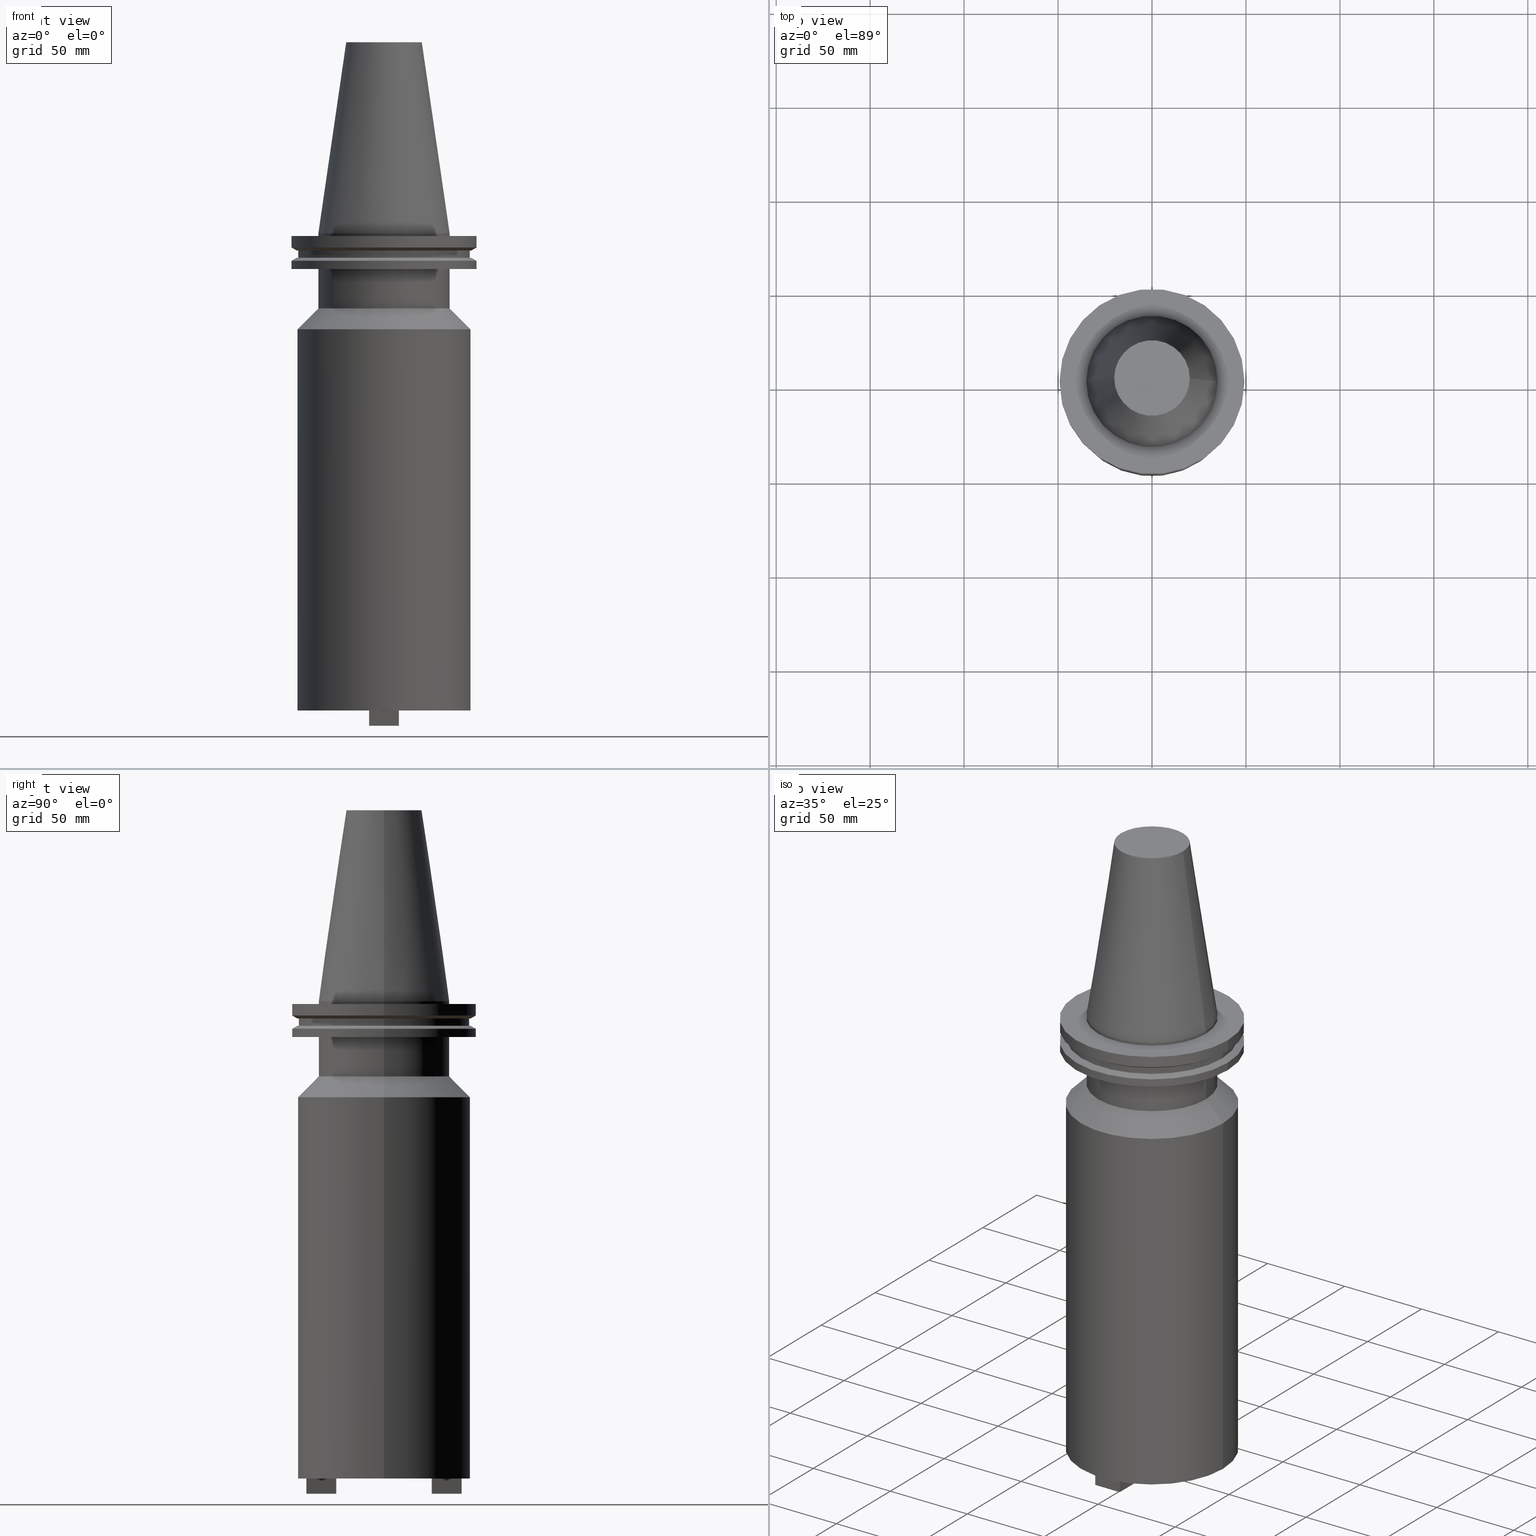
[diagram: canonical four-view strip — front | top / right | iso, engineering-drawing reading convention]
A machine part, canonical four-view strip (front | top / right | iso — engineering-drawing reading convention). The complete STEP part file that produces these views, byte-faithful:
ISO-10303-21;
HEADER;
FILE_DESCRIPTION (( 'STEP AP203' ),
    '1' );
FILE_NAME ('BCV50-SMC1_500-10.stp',
    '2022-03-03T20:18:44',
    ( '' ),
    ( '' ),
    'SwSTEP 2.0',
    'SolidWorks 2021',
    '' );
FILE_SCHEMA (( 'CONFIG_CONTROL_DESIGN' ));
ENDSEC;

DATA;
#1 = APPROVAL_DATE_TIME ( #424, #543 ) ;
#2 = VERTEX_POINT ( 'NONE', #782 ) ;
#3 = DIRECTION ( 'NONE',  ( -0.000000000000000000, -0.000000000000000000, 1.000000000000000000 ) ) ;
#4 = ADVANCED_FACE ( 'NONE', ( #115 ), #444, .T. ) ;
#5 = EDGE_LOOP ( 'NONE', ( #276, #131 ) ) ;
#6 = FACE_BOUND ( 'NONE', #499, .T. ) ;
#7 = DATE_AND_TIME ( #781, #204 ) ;
#8 = ORIENTED_EDGE ( 'NONE', *, *, #1009, .F. ) ;
#9 = EDGE_LOOP ( 'NONE', ( #400, #655, #374, #667 ) ) ;
#10 = CIRCLE ( 'NONE', #158, 49.21499999999999631 ) ;
#11 = PLANE ( 'NONE',  #743 ) ;
#12 = CARTESIAN_POINT ( 'NONE',  ( 0.000000000000000000, 0.000000000000000000, -51.12499999999995026 ) ) ;
#13 = DIRECTION ( 'NONE',  ( 4.369580544022182254E-16, 1.000000000000000000, 0.000000000000000000 ) ) ;
#14 = VERTEX_POINT ( 'NONE', #1046 ) ;
#15 = CIRCLE ( 'NONE', #623, 8.730000000000009308 ) ;
#16 = EDGE_CURVE ( 'NONE', #539, #455, #609, .T. ) ;
#17 = CARTESIAN_POINT ( 'NONE',  ( -8.729999999999998650, 1.069116655655639177E-15, -35.00000000000000000 ) ) ;
#18 = CARTESIAN_POINT ( 'NONE',  ( 0.000000000000000000, 0.000000000000000000, 101.5999999999999943 ) ) ;
#19 = EDGE_CURVE ( 'NONE', #138, #91, #876, .T. ) ;
#20 = ORIENTED_EDGE ( 'NONE', *, *, #485, .F. ) ;
#21 = LINE ( 'NONE', #549, #769 ) ;
#22 = VERTEX_POINT ( 'NONE', #454 ) ;
#23 = DIRECTION ( 'NONE',  ( -1.000000000000000000, 4.369580544022184719E-16, 0.000000000000000000 ) ) ;
#24 = CARTESIAN_POINT ( 'NONE',  ( -8.729999999999998650, 1.069116655655639177E-15, 0.000000000000000000 ) ) ;
#25 = ORIENTED_EDGE ( 'NONE', *, *, #952, .F. ) ;
#26 = CYLINDRICAL_SURFACE ( 'NONE', #660, 45.64500000000000313 ) ;
#27 = ORIENTED_EDGE ( 'NONE', *, *, #617, .T. ) ;
#28 = ORIENTED_EDGE ( 'NONE', *, *, #758, .F. ) ;
#29 = ADVANCED_FACE ( 'NONE', ( #443 ), #102, .T. ) ;
#30 = AXIS2_PLACEMENT_3D ( 'NONE', #48, #817, #43 ) ;
#31 = FACE_OUTER_BOUND ( 'NONE', #479, .T. ) ;
#32 = CARTESIAN_POINT ( 'NONE',  ( -34.92499999999999716, 4.277078946022130887E-15, -39.99999999999999289 ) ) ;
#33 = AXIS2_PLACEMENT_3D ( 'NONE', #818, #307, #491 ) ;
#34 = LOCAL_TIME ( 14, 18, 44.00000000000000000, #183 ) ;
#35 = ORIENTED_EDGE ( 'NONE', *, *, #237, .T. ) ;
#36 = CARTESIAN_POINT ( 'NONE',  ( 0.000000000000000000, 0.000000000000000000, -51.12499999999995026 ) ) ;
#37 = VERTEX_POINT ( 'NONE', #372 ) ;
#38 = EDGE_CURVE ( 'NONE', #2, #455, #10, .T. ) ;
#39 = EDGE_CURVE ( 'NONE', #82, #490, #697, .T. ) ;
#40 = DIRECTION ( 'NONE',  ( -1.000000000000000000, -4.369580544022185212E-16, 0.000000000000000000 ) ) ;
#41 = DIRECTION ( 'NONE',  ( -0.000000000000000000, -0.000000000000000000, 1.000000000000000000 ) ) ;
#42 = ORIENTED_EDGE ( 'NONE', *, *, #780, .T. ) ;
#43 = DIRECTION ( 'NONE',  ( 1.000000000000000000, 0.000000000000000000, 0.000000000000000000 ) ) ;
#44 = DIRECTION ( 'NONE',  ( -1.000000000000000000, 0.000000000000000000, 0.000000000000000000 ) ) ;
#45 = CARTESIAN_POINT ( 'NONE',  ( -7.940000000000012825, 8.673617379884053221E-16, -262.0799999999999841 ) ) ;
#46 = EDGE_LOOP ( 'NONE', ( #757, #284, #298, #347 ) ) ;
#47 = EDGE_CURVE ( 'NONE', #924, #258, #1041, .T. ) ;
#48 = CARTESIAN_POINT ( 'NONE',  ( 0.000000000000000000, 0.000000000000000000, -39.99999999999999289 ) ) ;
#49 = DIRECTION ( 'NONE',  ( -0.000000000000000000, -0.000000000000000000, 1.000000000000000000 ) ) ;
#50 = DIRECTION ( 'NONE',  ( -1.000000000000000000, 4.369580544022182747E-16, 0.000000000000000000 ) ) ;
#51 = EDGE_CURVE ( 'NONE', #152, #1007, #458, .T. ) ;
#52 = AXIS2_PLACEMENT_3D ( 'NONE', #714, #809, #40 ) ;
#53 = DIRECTION ( 'NONE',  ( -0.000000000000000000, -0.000000000000000000, 1.000000000000000000 ) ) ;
#54 = VECTOR ( 'NONE', #1075, 1000.000000000000000 ) ;
#55 = LINE ( 'NONE', #397, #984 ) ;
#56 = ORIENTED_EDGE ( 'NONE', *, *, #294, .T. ) ;
#57 = EDGE_CURVE ( 'NONE', #167, #381, #548, .T. ) ;
#58 = DIRECTION ( 'NONE',  ( 1.000000000000000000, 0.000000000000000000, 0.000000000000000000 ) ) ;
#59 = CARTESIAN_POINT ( 'NONE',  ( 0.000000000000000000, 0.000000000000000000, -1.499999999999987566 ) ) ;
#60 = EDGE_CURVE ( 'NONE', #595, #459, #447, .T. ) ;
#61 = EDGE_CURVE ( 'NONE', #72, #258, #715, .T. ) ;
#62 = CARTESIAN_POINT ( 'NONE',  ( 0.000000000000000000, 0.000000000000000000, -51.12499999999995026 ) ) ;
#63 = EDGE_LOOP ( 'NONE', ( #1029, #501, #703, #1044 ) ) ;
#64 = CARTESIAN_POINT ( 'NONE',  ( 0.000000000000000000, 0.000000000000000000, -9.204999999999991189 ) ) ;
#65 = AXIS2_PLACEMENT_3D ( 'NONE', #437, #200, #963 ) ;
#66 = LINE ( 'NONE', #229, #986 ) ;
#67 = VERTEX_POINT ( 'NONE', #945 ) ;
#68 = AXIS2_PLACEMENT_3D ( 'NONE', #465, #313, #913 ) ;
#69 = DIRECTION ( 'NONE',  ( -0.000000000000000000, -0.000000000000000000, 1.000000000000000000 ) ) ;
#70 = AXIS2_PLACEMENT_3D ( 'NONE', #970, #121, #399 ) ;
#71 = EDGE_CURVE ( 'NONE', #392, #145, #1100, .T. ) ;
#72 = VERTEX_POINT ( 'NONE', #537 ) ;
#73 = LINE ( 'NONE', #1068, #896 ) ;
#74 = DIRECTION ( 'NONE',  ( 1.000000000000000000, 0.000000000000000000, 0.000000000000000000 ) ) ;
#75 = DIRECTION ( 'NONE',  ( 1.000000000000000000, 0.000000000000000000, 0.000000000000000000 ) ) ;
#76 = AXIS2_PLACEMENT_3D ( 'NONE', #267, #607, #75 ) ;
#77 = ORIENTED_EDGE ( 'NONE', *, *, #1092, .T. ) ;
#78 = CARTESIAN_POINT ( 'NONE',  ( 0.000000000000000000, 0.000000000000000000, -1.499999999999987566 ) ) ;
#79 = ORIENTED_EDGE ( 'NONE', *, *, #452, .F. ) ;
#80 = DIRECTION ( 'NONE',  ( 0.000000000000000000, -0.000000000000000000, 1.000000000000000000 ) ) ;
#81 = COORDINATED_UNIVERSAL_TIME_OFFSET ( 6, 0, .BEHIND. ) ;
#82 = VERTEX_POINT ( 'NONE', #614 ) ;
#83 = DIRECTION ( 'NONE',  ( -0.8660254037844273833, 1.060575238724893110E-16, 0.5000000000000195399 ) ) ;
#84 = CARTESIAN_POINT ( 'NONE',  ( 0.000000000000000000, 0.000000000000000000, -9.204999999999991189 ) ) ;
#85 = EDGE_LOOP ( 'NONE', ( #807, #629, #207, #625 ) ) ;
#86 = AXIS2_PLACEMENT_3D ( 'NONE', #282, #206, #520 ) ;
#87 = FACE_OUTER_BOUND ( 'NONE', #971, .T. ) ;
#88 = CYLINDRICAL_SURFACE ( 'NONE', #76, 49.21499999999998920 ) ;
#89 = PRODUCT_DEFINITION_SHAPE ( 'NONE', 'NONE',  #793 ) ;
#90 = DIRECTION ( 'NONE',  ( 1.000000000000000000, 0.000000000000000000, 0.000000000000000000 ) ) ;
#91 = VERTEX_POINT ( 'NONE', #959 ) ;
#92 = CIRCLE ( 'NONE', #676, 34.92499999999999005 ) ;
#93 = ORIENTED_EDGE ( 'NONE', *, *, #129, .F. ) ;
#94 = VECTOR ( 'NONE', #882, 1000.000000000000000 ) ;
#95 = PERSON_AND_ORGANIZATION ( #644, #829 ) ;
#96 = CARTESIAN_POINT ( 'NONE',  ( 0.000000000000000000, 0.000000000000000000, -13.05499999999999794 ) ) ;
#97 = DIRECTION ( 'NONE',  ( -0.000000000000000000, -0.000000000000000000, 1.000000000000000000 ) ) ;
#98 = ORIENTED_EDGE ( 'NONE', *, *, #758, .T. ) ;
#99 = DIRECTION ( 'NONE',  ( -0.000000000000000000, -0.000000000000000000, 1.000000000000000000 ) ) ;
#100 = FACE_OUTER_BOUND ( 'NONE', #105, .T. ) ;
#101 = COORDINATED_UNIVERSAL_TIME_OFFSET ( 6, 0, .BEHIND. ) ;
#102 = CYLINDRICAL_SURFACE ( 'NONE', #318, 49.21499999999999631 ) ;
#103 = LINE ( 'NONE', #938, #236 ) ;
#104 = DIRECTION ( 'NONE',  ( -0.000000000000000000, -0.000000000000000000, 1.000000000000000000 ) ) ;
#105 = EDGE_LOOP ( 'NONE', ( #718, #927, #674, #509 ) ) ;
#106 = CARTESIAN_POINT ( 'NONE',  ( 0.000000000000000000, 0.000000000000000000, -14.65761014474876944 ) ) ;
#107 = EDGE_CURVE ( 'NONE', #796, #639, #926, .T. ) ;
#108 = CARTESIAN_POINT ( 'NONE',  ( -7.940000000000009273, 25.39999999999998792, -254.0000000000000000 ) ) ;
#109 = CARTESIAN_POINT ( 'NONE',  ( -7.940000000000009273, -25.39999999999998437, -262.0799999999999841 ) ) ;
#110 = DIRECTION ( 'NONE',  ( 1.000000000000000000, 0.000000000000000000, 0.000000000000000000 ) ) ;
#111 = ORIENTED_EDGE ( 'NONE', *, *, #820, .F. ) ;
#112 = AXIS2_PLACEMENT_3D ( 'NONE', #1080, #832, #1071 ) ;
#113 = DIRECTION ( 'NONE',  ( 0.000000000000000000, -0.000000000000000000, 1.000000000000000000 ) ) ;
#114 = LOCAL_TIME ( 14, 18, 44.00000000000000000, #81 ) ;
#115 = FACE_OUTER_BOUND ( 'NONE', #305, .T. ) ;
#116 = APPROVAL ( #762, 'UNSPECIFIED' ) ;
#117 = CARTESIAN_POINT ( 'NONE',  ( 8.729999999999998650, 0.000000000000000000, 0.000000000000000000 ) ) ;
#118 = ORIENTED_EDGE ( 'NONE', *, *, #247, .F. ) ;
#119 = DIRECTION ( 'NONE',  ( 2.184790272011092113E-16, 1.000000000000000000, 0.000000000000000000 ) ) ;
#120 = ORIENTED_EDGE ( 'NONE', *, *, #221, .F. ) ;
#121 = DIRECTION ( 'NONE',  ( 0.000000000000000000, 0.000000000000000000, -1.000000000000000000 ) ) ;
#122 = EDGE_CURVE ( 'NONE', #862, #238, #542, .T. ) ;
#123 = VERTEX_POINT ( 'NONE', #982 ) ;
#124 = DIRECTION ( 'NONE',  ( -1.000000000000000000, 4.369580544022184226E-16, 0.000000000000000000 ) ) ;
#125 = CARTESIAN_POINT ( 'NONE',  ( 0.000000000000000000, 0.000000000000000000, -254.0000000000000000 ) ) ;
#126 = LINE ( 'NONE', #627, #747 ) ;
#127 = VECTOR ( 'NONE', #731, 1000.000000000000000 ) ;
#128 = VECTOR ( 'NONE', #976, 1000.000000000000000 ) ;
#129 = EDGE_CURVE ( 'NONE', #539, #1003, #710, .T. ) ;
#130 = DIRECTION ( 'NONE',  ( 0.000000000000000000, 0.000000000000000000, -1.000000000000000000 ) ) ;
#131 = ORIENTED_EDGE ( 'NONE', *, *, #321, .T. ) ;
#132 = PLANE ( 'NONE',  #309 ) ;
#133 = CARTESIAN_POINT ( 'NONE',  ( -34.92499999999999005, 0.000000000000000000, 0.000000000000000000 ) ) ;
#134 = AXIS2_PLACEMENT_3D ( 'NONE', #489, #831, #58 ) ;
#135 = ORIENTED_EDGE ( 'NONE', *, *, #789, .T. ) ;
#136 = CARTESIAN_POINT ( 'NONE',  ( 0.000000000000000000, 0.000000000000000000, -14.65761014474876944 ) ) ;
#137 = PLANE ( 'NONE',  #70 ) ;
#138 = VERTEX_POINT ( 'NONE', #469 ) ;
#139 = DIRECTION ( 'NONE',  ( -0.000000000000000000, -0.000000000000000000, 1.000000000000000000 ) ) ;
#140 = DIRECTION ( 'NONE',  ( -1.000000000000000000, -4.369580544022185705E-16, 0.000000000000000000 ) ) ;
#141 = DIRECTION ( 'NONE',  ( -0.000000000000000000, -0.000000000000000000, 1.000000000000000000 ) ) ;
#142 = EDGE_CURVE ( 'NONE', #803, #145, #126, .T. ) ;
#143 = CIRCLE ( 'NONE', #911, 34.92499999999999716 ) ;
#144 = LINE ( 'NONE', #480, #260 ) ;
#145 = VERTEX_POINT ( 'NONE', #133 ) ;
#146 = DIRECTION ( 'NONE',  ( 1.000000000000000000, 0.000000000000000000, 0.000000000000000000 ) ) ;
#147 = AXIS2_PLACEMENT_3D ( 'NONE', #506, #428, #1098 ) ;
#148 = CC_DESIGN_PERSON_AND_ORGANIZATION_ASSIGNMENT ( #346, #958, ( #556 ) ) ;
#149 = CC_DESIGN_APPROVAL ( #1105, ( #500 ) ) ;
#150 = CYLINDRICAL_SURFACE ( 'NONE', #250, 49.21499999999998920 ) ;
#151 = DIRECTION ( 'NONE',  ( 1.000000000000000000, 0.000000000000000000, 0.000000000000000000 ) ) ;
#152 = VERTEX_POINT ( 'NONE', #32 ) ;
#153 = DIRECTION ( 'NONE',  ( 2.184790272011092360E-16, 1.000000000000000000, 0.000000000000000000 ) ) ;
#154 = DIRECTION ( 'NONE',  ( -1.000000000000000000, 4.369580544022184719E-16, 0.000000000000000000 ) ) ;
#155 = EDGE_CURVE ( 'NONE', #67, #862, #463, .T. ) ;
#156 = EDGE_LOOP ( 'NONE', ( #722, #1021 ) ) ;
#157 = FACE_OUTER_BOUND ( 'NONE', #312, .T. ) ;
#158 = AXIS2_PLACEMENT_3D ( 'NONE', #872, #1033, #368 ) ;
#159 = ORIENTED_EDGE ( 'NONE', *, *, #647, .T. ) ;
#160 = DIRECTION ( 'NONE',  ( 0.000000000000000000, 0.000000000000000000, -1.000000000000000000 ) ) ;
#161 = CARTESIAN_POINT ( 'NONE',  ( -7.940000000000007496, 41.27999999999998693, -254.0000000000000000 ) ) ;
#162 = ORIENTED_EDGE ( 'NONE', *, *, #332, .T. ) ;
#163 = AXIS2_PLACEMENT_3D ( 'NONE', #524, #80, #785 ) ;
#164 = AXIS2_PLACEMENT_3D ( 'NONE', #78, #407, #923 ) ;
#165 = EDGE_LOOP ( 'NONE', ( #27, #135, #93, #773 ) ) ;
#166 = PERSON_AND_ORGANIZATION ( #644, #829 ) ;
#167 = VERTEX_POINT ( 'NONE', #378 ) ;
#168 = CARTESIAN_POINT ( 'NONE',  ( 0.000000000000000000, 0.000000000000000000, -13.05499999999999794 ) ) ;
#169 = EDGE_LOOP ( 'NONE', ( #553, #724, #1027, #942 ) ) ;
#170 = EDGE_CURVE ( 'NONE', #1007, #764, #534, .T. ) ;
#171 = FACE_OUTER_BOUND ( 'NONE', #186, .T. ) ;
#172 = DATE_TIME_ROLE ( 'creation_date' ) ;
#173 = ORIENTED_EDGE ( 'NONE', *, *, #492, .F. ) ;
#174 = ORIENTED_EDGE ( 'NONE', *, *, #713, .T. ) ;
#175 = CARTESIAN_POINT ( 'NONE',  ( -45.64500000000000313, 5.589900314708094957E-15, -13.05499999999999794 ) ) ;
#176 = PERSON_AND_ORGANIZATION_ROLE ( 'classification_officer' ) ;
#177 = CARTESIAN_POINT ( 'NONE',  ( 49.21499999999999631, 0.000000000000000000, 101.5999999999999943 ) ) ;
#178 = AXIS2_PLACEMENT_3D ( 'NONE', #423, #1024, #497 ) ;
#179 = EDGE_LOOP ( 'NONE', ( #1012, #994, #242, #111 ) ) ;
#180 = AXIS2_PLACEMENT_3D ( 'NONE', #507, #13, #532 ) ;
#181 = FACE_OUTER_BOUND ( 'NONE', #9, .T. ) ;
#182 = LINE ( 'NONE', #870, #565 ) ;
#183 = COORDINATED_UNIVERSAL_TIME_OFFSET ( 6, 0, .BEHIND. ) ;
#184 = DIRECTION ( 'NONE',  ( -0.000000000000000000, -0.000000000000000000, 1.000000000000000000 ) ) ;
#185 = CARTESIAN_POINT ( 'NONE',  ( -49.21500000000000341, 6.027099222003699404E-15, -7.602389855251287187 ) ) ;
#186 = EDGE_LOOP ( 'NONE', ( #223, #1106, #386, #590 ) ) ;
#187 = ORIENTED_EDGE ( 'NONE', *, *, #965, .T. ) ;
#188 = LINE ( 'NONE', #264, #1107 ) ;
#189 = DIRECTION ( 'NONE',  ( 0.000000000000000000, 1.000000000000000000, 0.000000000000000000 ) ) ;
#190 = SECURITY_CLASSIFICATION_LEVEL ( 'unclassified' ) ;
#191 = ORIENTED_EDGE ( 'NONE', *, *, #51, .T. ) ;
#192 = ADVANCED_FACE ( 'NONE', ( #721 ), #557, .T. ) ;
#193 = VERTEX_POINT ( 'NONE', #899 ) ;
#194 = CARTESIAN_POINT ( 'NONE',  ( 34.92499999999999005, 4.277078946022130098E-15, 0.000000000000000000 ) ) ;
#195 = CC_DESIGN_DATE_AND_TIME_ASSIGNMENT ( #771, #172, ( #793 ) ) ;
#196 = VECTOR ( 'NONE', #527, 1000.000000000000000 ) ;
#197 = APPLICATION_CONTEXT ( 'configuration controlled 3d designs of mechanical parts and assemblies' ) ;
#198 = CARTESIAN_POINT ( 'NONE',  ( -7.940000000000009273, -41.27999999999998693, -262.0799999999999841 ) ) ;
#199 = LINE ( 'NONE', #741, #288 ) ;
#200 = DIRECTION ( 'NONE',  ( -0.000000000000000000, -0.000000000000000000, 1.000000000000000000 ) ) ;
#201 = ORIENTED_EDGE ( 'NONE', *, *, #39, .T. ) ;
#202 = AXIS2_PLACEMENT_3D ( 'NONE', #457, #302, #1060 ) ;
#203 = AXIS2_PLACEMENT_3D ( 'NONE', #567, #824, #151 ) ;
#204 = LOCAL_TIME ( 14, 18, 44.00000000000000000, #436 ) ;
#205 = CARTESIAN_POINT ( 'NONE',  ( 0.000000000000000000, 0.000000000000000000, -254.0000000000000000 ) ) ;
#206 = DIRECTION ( 'NONE',  ( -0.000000000000000000, -0.000000000000000000, 1.000000000000000000 ) ) ;
#207 = ORIENTED_EDGE ( 'NONE', *, *, #253, .T. ) ;
#208 = FACE_OUTER_BOUND ( 'NONE', #533, .T. ) ;
#209 = ADVANCED_FACE ( 'NONE', ( #755 ), #1061, .T. ) ;
#210 = DIRECTION ( 'NONE',  ( 0.000000000000000000, 0.000000000000000000, -1.000000000000000000 ) ) ;
#211 = EDGE_CURVE ( 'NONE', #601, #1047, #310, .T. ) ;
#212 = EDGE_LOOP ( 'NONE', ( #262, #191, #470, #476 ) ) ;
#213 = CARTESIAN_POINT ( 'NONE',  ( -7.940000000000009273, 25.39999999999998792, -262.0799999999999841 ) ) ;
#214 = DIRECTION ( 'NONE',  ( 1.000000000000000000, 0.000000000000000000, 0.000000000000000000 ) ) ;
#215 = FACE_BOUND ( 'NONE', #572, .T. ) ;
#216 = AXIS2_PLACEMENT_3D ( 'NONE', #1064, #306, #214 ) ;
#217 = CARTESIAN_POINT ( 'NONE',  ( 0.000000000000000000, 0.000000000000000000, -254.0000000000000000 ) ) ;
#218 = CARTESIAN_POINT ( 'NONE',  ( 7.939999999999994174, -25.39999999999999147, -262.0799999999999841 ) ) ;
#219 = AXIS2_PLACEMENT_3D ( 'NONE', #1031, #1025, #529 ) ;
#220 = CIRCLE ( 'NONE', #842, 46.43919780457007818 ) ;
#221 = EDGE_CURVE ( 'NONE', #816, #924, #227, .T. ) ;
#222 = CONICAL_SURFACE ( 'NONE', #219, 49.21499999999998920, 1.047197551196554333 ) ;
#223 = ORIENTED_EDGE ( 'NONE', *, *, #253, .F. ) ;
#224 = EDGE_CURVE ( 'NONE', #14, #258, #73, .T. ) ;
#225 = CARTESIAN_POINT ( 'NONE',  ( 34.92499999999999716, 0.000000000000000000, -19.04999999999999716 ) ) ;
#226 = FACE_BOUND ( 'NONE', #613, .T. ) ;
#227 = LINE ( 'NONE', #632, #128 ) ;
#228 = DIRECTION ( 'NONE',  ( 1.000000000000000000, 0.000000000000000000, 0.000000000000000000 ) ) ;
#229 = CARTESIAN_POINT ( 'NONE',  ( 34.92499999999999716, 0.000000000000000000, 101.5999999999999943 ) ) ;
#230 = EDGE_LOOP ( 'NONE', ( #379, #1097, #838, #79 ) ) ;
#231 = FACE_OUTER_BOUND ( 'NONE', #985, .T. ) ;
#232 = PLANE ( 'NONE',  #112 ) ;
#233 = LINE ( 'NONE', #411, #448 ) ;
#234 = CYLINDRICAL_SURFACE ( 'NONE', #1088, 49.21499999999999631 ) ;
#235 = CARTESIAN_POINT ( 'NONE',  ( 7.939999999999990621, 25.39999999999998792, -262.0799999999999841 ) ) ;
#236 = VECTOR ( 'NONE', #1101, 1000.000000000000000 ) ;
#237 = EDGE_CURVE ( 'NONE', #891, #145, #551, .T. ) ;
#238 = VERTEX_POINT ( 'NONE', #213 ) ;
#239 = DIRECTION ( 'NONE',  ( -0.000000000000000000, -0.000000000000000000, 1.000000000000000000 ) ) ;
#240 = CARTESIAN_POINT ( 'NONE',  ( 7.939999999999995950, 1.734723475976805714E-15, -262.0799999999999841 ) ) ;
#241 = VECTOR ( 'NONE', #371, 1000.000000000000000 ) ;
#242 = ORIENTED_EDGE ( 'NONE', *, *, #61, .F. ) ;
#243 = VECTOR ( 'NONE', #184, 1000.000000000000000 ) ;
#244 = PRODUCT_RELATED_PRODUCT_CATEGORY ( 'detail', '', ( #1035 ) ) ;
#245 = ORIENTED_EDGE ( 'NONE', *, *, #71, .T. ) ;
#246 = CARTESIAN_POINT ( 'NONE',  ( 0.000000000000000000, 0.000000000000000000, 0.000000000000000000 ) ) ;
#247 = EDGE_CURVE ( 'NONE', #167, #22, #417, .T. ) ;
#248 = CARTESIAN_POINT ( 'NONE',  ( 0.000000000000000000, 0.000000000000000000, 0.000000000000000000 ) ) ;
#249 = ORIENTED_EDGE ( 'NONE', *, *, #16, .T. ) ;
#250 = AXIS2_PLACEMENT_3D ( 'NONE', #1070, #894, #299 ) ;
#251 = VECTOR ( 'NONE', #154, 1000.000000000000000 ) ;
#252 = DIRECTION ( 'NONE',  ( -0.7071067811865489050, 0.000000000000000000, -0.7071067811865462405 ) ) ;
#253 = EDGE_CURVE ( 'NONE', #420, #238, #144, .T. ) ;
#254 = VERTEX_POINT ( 'NONE', #395 ) ;
#255 = DIRECTION ( 'NONE',  ( 1.000000000000000000, 0.000000000000000000, 0.000000000000000000 ) ) ;
#256 = ORIENTED_EDGE ( 'NONE', *, *, #719, .T. ) ;
#257 = FACE_OUTER_BOUND ( 'NONE', #263, .T. ) ;
#258 = VERTEX_POINT ( 'NONE', #1090 ) ;
#259 = DIRECTION ( 'NONE',  ( -0.000000000000000000, -0.000000000000000000, 1.000000000000000000 ) ) ;
#260 = VECTOR ( 'NONE', #826, 1000.000000000000000 ) ;
#261 = COORDINATED_UNIVERSAL_TIME_OFFSET ( 6, 0, .BEHIND. ) ;
#262 = ORIENTED_EDGE ( 'NONE', *, *, #314, .T. ) ;
#263 = EDGE_LOOP ( 'NONE', ( #875, #370 ) ) ;
#264 = CARTESIAN_POINT ( 'NONE',  ( 7.939999999999994174, -25.39999999999999147, -262.0799999999999841 ) ) ;
#265 = EDGE_CURVE ( 'NONE', #271, #422, #510, .T. ) ;
#266 = DIRECTION ( 'NONE',  ( -0.000000000000000000, -0.000000000000000000, 1.000000000000000000 ) ) ;
#267 = CARTESIAN_POINT ( 'NONE',  ( 0.000000000000000000, 0.000000000000000000, 101.5999999999999943 ) ) ;
#268 = ORIENTED_EDGE ( 'NONE', *, *, #211, .F. ) ;
#269 = FACE_OUTER_BOUND ( 'NONE', #662, .T. ) ;
#270 = AXIS2_PLACEMENT_3D ( 'NONE', #357, #606, #74 ) ;
#271 = VERTEX_POINT ( 'NONE', #300 ) ;
#272 = VECTOR ( 'NONE', #681, 1000.000000000000000 ) ;
#273 = EDGE_CURVE ( 'NONE', #1017, #392, #540, .T. ) ;
#274 = DIRECTION ( 'NONE',  ( 1.000000000000000000, 0.000000000000000000, 0.000000000000000000 ) ) ;
#275 = CC_DESIGN_PERSON_AND_ORGANIZATION_ASSIGNMENT ( #166, #526, ( #1035 ) ) ;
#276 = ORIENTED_EDGE ( 'NONE', *, *, #904, .T. ) ;
#277 = DIRECTION ( 'NONE',  ( 1.000000000000000000, 0.000000000000000000, 0.000000000000000000 ) ) ;
#278 = DIRECTION ( 'NONE',  ( 2.184790272011091620E-16, -1.000000000000000000, 0.000000000000000000 ) ) ;
#279 = ORIENTED_EDGE ( 'NONE', *, *, #874, .T. ) ;
#280 = DIRECTION ( 'NONE',  ( 1.000000000000000000, 0.000000000000000000, 0.000000000000000000 ) ) ;
#281 = DIRECTION ( 'NONE',  ( -0.000000000000000000, -0.000000000000000000, 1.000000000000000000 ) ) ;
#282 = CARTESIAN_POINT ( 'NONE',  ( 0.000000000000000000, 0.000000000000000000, -13.05499999999999794 ) ) ;
#283 = CARTESIAN_POINT ( 'NONE',  ( -7.940000000000009273, -25.39999999999998437, -262.0799999999999841 ) ) ;
#284 = ORIENTED_EDGE ( 'NONE', *, *, #1062, .F. ) ;
#285 = EDGE_CURVE ( 'NONE', #1052, #539, #884, .T. ) ;
#286 = FACE_OUTER_BOUND ( 'NONE', #752, .T. ) ;
#287 = AXIS2_PLACEMENT_3D ( 'NONE', #675, #259, #255 ) ;
#288 = VECTOR ( 'NONE', #729, 1000.000000000000000 ) ;
#289 = DIRECTION ( 'NONE',  ( 1.000000000000000000, 0.000000000000000000, 0.000000000000000000 ) ) ;
#290 = ADVANCED_FACE ( 'NONE', ( #286 ), #712, .F. ) ;
#291 = CARTESIAN_POINT ( 'NONE',  ( 0.000000000000000000, 25.39999999999998792, -254.0000000000000000 ) ) ;
#292 = CARTESIAN_POINT ( 'NONE',  ( -7.940000000000009273, 0.000000000000000000, -254.0000000000000000 ) ) ;
#293 = ORIENTED_EDGE ( 'NONE', *, *, #51, .F. ) ;
#294 = EDGE_CURVE ( 'NONE', #138, #595, #460, .T. ) ;
#295 = DIRECTION ( 'NONE',  ( -0.000000000000000000, -0.000000000000000000, 1.000000000000000000 ) ) ;
#296 = DIRECTION ( 'NONE',  ( 1.000000000000000000, 0.000000000000000000, 0.000000000000000000 ) ) ;
#297 = DIRECTION ( 'NONE',  ( -0.000000000000000000, -0.000000000000000000, 1.000000000000000000 ) ) ;
#298 = ORIENTED_EDGE ( 'NONE', *, *, #732, .T. ) ;
#299 = DIRECTION ( 'NONE',  ( 1.000000000000000000, 0.000000000000000000, 0.000000000000000000 ) ) ;
#300 = CARTESIAN_POINT ( 'NONE',  ( 8.729999999999998650, 0.000000000000000000, -35.00000000000000000 ) ) ;
#301 = DIRECTION ( 'NONE',  ( -0.000000000000000000, -0.000000000000000000, 1.000000000000000000 ) ) ;
#302 = DIRECTION ( 'NONE',  ( -0.000000000000000000, -0.000000000000000000, 1.000000000000000000 ) ) ;
#303 = CARTESIAN_POINT ( 'NONE',  ( -34.92499999999999005, 4.277078946022130098E-15, 101.5999999999999943 ) ) ;
#304 = CLOSED_SHELL ( 'NONE', ( #593, #742, #940, #763, #29, #1030, #680, #373, #701, #983, #552, #535, #415, #598, #571, #389, #853, #705, #427, #933, #928, #682, #1076, #633, #886, #4, #761, #834, #778, #192, #409, #628, #404, #385, #973, #519, #290, #1002, #209 ) ) ;
#305 = EDGE_LOOP ( 'NONE', ( #1065, #646, #416, #464 ) ) ;
#306 = DIRECTION ( 'NONE',  ( -0.000000000000000000, -0.000000000000000000, 1.000000000000000000 ) ) ;
#307 = DIRECTION ( 'NONE',  ( -0.000000000000000000, -0.000000000000000000, 1.000000000000000000 ) ) ;
#308 = AXIS2_PLACEMENT_3D ( 'NONE', #511, #441, #843 ) ;
#309 = AXIS2_PLACEMENT_3D ( 'NONE', #815, #889, #119 ) ;
#310 = LINE ( 'NONE', #910, #604 ) ;
#311 = AXIS2_PLACEMENT_3D ( 'NONE', #168, #97, #855 ) ;
#312 = EDGE_LOOP ( 'NONE', ( #866, #814 ) ) ;
#313 = DIRECTION ( 'NONE',  ( -0.000000000000000000, -0.000000000000000000, 1.000000000000000000 ) ) ;
#314 = EDGE_CURVE ( 'NONE', #434, #152, #143, .T. ) ;
#315 = EDGE_CURVE ( 'NONE', #516, #14, #320, .T. ) ;
#316 = DIRECTION ( 'NONE',  ( 0.000000000000000000, 0.000000000000000000, -1.000000000000000000 ) ) ;
#317 = CARTESIAN_POINT ( 'NONE',  ( 0.000000000000000000, 0.000000000000000000, 101.5999999999999801 ) ) ;
#318 = AXIS2_PLACEMENT_3D ( 'NONE', #18, #800, #691 ) ;
#319 = CARTESIAN_POINT ( 'NONE',  ( 7.939999999999999503, -1.734723475976807094E-15, -262.0799999999999841 ) ) ;
#320 = LINE ( 'NONE', #650, #1077 ) ;
#321 = EDGE_CURVE ( 'NONE', #670, #22, #1043, .T. ) ;
#322 = CONICAL_SURFACE ( 'NONE', #929, 34.92499999999999005, 0.1448138465474119452 ) ;
#323 = AXIS2_PLACEMENT_3D ( 'NONE', #603, #861, #776 ) ;
#324 = EDGE_LOOP ( 'NONE', ( #901, #733, #711, #846 ) ) ;
#325 = CARTESIAN_POINT ( 'NONE',  ( -1.803762848572357623E-14, 41.27999999999998693, -254.0000000000000000 ) ) ;
#326 = DIRECTION ( 'NONE',  ( -0.000000000000000000, -0.000000000000000000, 1.000000000000000000 ) ) ;
#327 = CC_DESIGN_DATE_AND_TIME_ASSIGNMENT ( #7, #351, ( #500 ) ) ;
#328 = ORIENTED_EDGE ( 'NONE', *, *, #107, .T. ) ;
#329 = DIRECTION ( 'NONE',  ( -1.000000000000000000, -4.369580544022185705E-16, 0.000000000000000000 ) ) ;
#330 = ORIENTED_EDGE ( 'NONE', *, *, #904, .F. ) ;
#331 = CARTESIAN_POINT ( 'NONE',  ( -7.940000000000009273, 25.39999999999998792, -262.0799999999999841 ) ) ;
#332 = EDGE_CURVE ( 'NONE', #679, #481, #508, .T. ) ;
#333 = ORIENTED_EDGE ( 'NONE', *, *, #273, .T. ) ;
#334 = CARTESIAN_POINT ( 'NONE',  ( -1.803762848572357623E-14, 41.27999999999998693, -262.0799999999999841 ) ) ;
#335 = ORIENTED_EDGE ( 'NONE', *, *, #897, .T. ) ;
#336 = CARTESIAN_POINT ( 'NONE',  ( 0.000000000000000000, 0.000000000000000000, -13.05499999999999794 ) ) ;
#337 = DIRECTION ( 'NONE',  ( -0.000000000000000000, -0.000000000000000000, 1.000000000000000000 ) ) ;
#338 = CARTESIAN_POINT ( 'NONE',  ( 0.000000000000000000, 0.000000000000000000, -262.0799999999999841 ) ) ;
#339 = APPROVAL_DATE_TIME ( #851, #116 ) ;
#340 = ORIENTED_EDGE ( 'NONE', *, *, #211, .T. ) ;
#341 = CIRCLE ( 'NONE', #878, 46.04999999999999716 ) ;
#342 = AXIS2_PLACEMENT_3D ( 'NONE', #671, #99, #695 ) ;
#343 = ORIENTED_EDGE ( 'NONE', *, *, #401, .T. ) ;
#344 = CC_DESIGN_PERSON_AND_ORGANIZATION_ASSIGNMENT ( #95, #944, ( #556 ) ) ;
#345 = CARTESIAN_POINT ( 'NONE',  ( -7.940000000000009273, -41.27999999999998693, -262.0799999999999841 ) ) ;
#346 = PERSON_AND_ORGANIZATION ( #644, #829 ) ;
#347 = ORIENTED_EDGE ( 'NONE', *, *, #947, .T. ) ;
#348 = EDGE_CURVE ( 'NONE', #1003, #2, #103, .T. ) ;
#349 = VERTEX_POINT ( 'NONE', #512 ) ;
#350 = PLANE ( 'NONE',  #163 ) ;
#351 = DATE_TIME_ROLE ( 'classification_date' ) ;
#352 = ORIENTED_EDGE ( 'NONE', *, *, #819, .T. ) ;
#353 = ADVANCED_BREP_SHAPE_REPRESENTATION ( 'BCV50-SMC1_500-10', ( #991, #988 ), #772 ) ;
#354 = CARTESIAN_POINT ( 'NONE',  ( 20.10819343178871321, 3.369811209154858606E-15, 101.5999999999999801 ) ) ;
#355 = ORIENTED_EDGE ( 'NONE', *, *, #421, .T. ) ;
#356 = AXIS2_PLACEMENT_3D ( 'NONE', #45, #390, #810 ) ;
#357 = CARTESIAN_POINT ( 'NONE',  ( 0.000000000000000000, 0.000000000000000000, -9.204999999999991189 ) ) ;
#358 = CARTESIAN_POINT ( 'NONE',  ( 0.000000000000000000, 25.39999999999998792, -262.0799999999999841 ) ) ;
#359 = CARTESIAN_POINT ( 'NONE',  ( 7.939999999999995950, 1.734723475976805714E-15, -254.0000000000000000 ) ) ;
#360 = LINE ( 'NONE', #783, #468 ) ;
#361 = AXIS2_PLACEMENT_3D ( 'NONE', #136, #482, #828 ) ;
#362 = ORIENTED_EDGE ( 'NONE', *, *, #965, .F. ) ;
#363 = CIRCLE ( 'NONE', #450, 46.04999999999999716 ) ;
#364 = CARTESIAN_POINT ( 'NONE',  ( 49.21499999999999631, 0.000000000000000000, -1.499999999999987566 ) ) ;
#365 = DIRECTION ( 'NONE',  ( -0.000000000000000000, -0.000000000000000000, 1.000000000000000000 ) ) ;
#366 = ORIENTED_EDGE ( 'NONE', *, *, #129, .T. ) ;
#367 = CARTESIAN_POINT ( 'NONE',  ( 0.000000000000000000, 0.000000000000000000, 101.5999999999999943 ) ) ;
#368 = DIRECTION ( 'NONE',  ( 1.000000000000000000, 0.000000000000000000, 0.000000000000000000 ) ) ;
#369 = EDGE_CURVE ( 'NONE', #238, #459, #599, .T. ) ;
#370 = ORIENTED_EDGE ( 'NONE', *, *, #38, .T. ) ;
#371 = DIRECTION ( 'NONE',  ( 0.8660254037844273833, 0.000000000000000000, 0.5000000000000195399 ) ) ;
#372 = CARTESIAN_POINT ( 'NONE',  ( -46.43919780457007818, 5.857130358318727293E-15, -9.204999999999991189 ) ) ;
#373 = ADVANCED_FACE ( 'NONE', ( #669 ), #222, .T. ) ;
#374 = ORIENTED_EDGE ( 'NONE', *, *, #155, .F. ) ;
#375 = CONICAL_SURFACE ( 'NONE', #308, 34.92499999999999005, 0.1448138465474119452 ) ;
#376 = VECTOR ( 'NONE', #329, 1000.000000000000000 ) ;
#377 = DIRECTION ( 'NONE',  ( 1.000000000000000000, 0.000000000000000000, 0.000000000000000000 ) ) ;
#378 = CARTESIAN_POINT ( 'NONE',  ( 45.64500000000000313, 0.000000000000000000, -13.05499999999999794 ) ) ;
#379 = ORIENTED_EDGE ( 'NONE', *, *, #237, .F. ) ;
#380 = CARTESIAN_POINT ( 'NONE',  ( 0.000000000000000000, 45.64500000000000313, -13.05499999999999794 ) ) ;
#381 = VERTEX_POINT ( 'NONE', #175 ) ;
#382 = FACE_OUTER_BOUND ( 'NONE', #156, .T. ) ;
#383 = DIRECTION ( 'NONE',  ( -1.000000000000000000, 0.000000000000000000, 0.000000000000000000 ) ) ;
#384 = DIRECTION ( 'NONE',  ( -0.1443082272672999988, 0.000000000000000000, -0.9895327864921755756 ) ) ;
#385 = ADVANCED_FACE ( 'NONE', ( #171 ), #1039, .T. ) ;
#386 = ORIENTED_EDGE ( 'NONE', *, *, #155, .T. ) ;
#387 = CYLINDRICAL_SURFACE ( 'NONE', #1016, 46.04999999999999716 ) ;
#388 = EDGE_LOOP ( 'NONE', ( #956, #895, #340, #425 ) ) ;
#389 = ADVANCED_FACE ( 'NONE', ( #1020 ), #88, .T. ) ;
#390 = DIRECTION ( 'NONE',  ( -1.000000000000000000, 1.092395136005546303E-16, 0.000000000000000000 ) ) ;
#391 = CC_DESIGN_PERSON_AND_ORGANIZATION_ASSIGNMENT ( #594, #1032, ( #793 ) ) ;
#392 = VERTEX_POINT ( 'NONE', #419 ) ;
#393 = DIRECTION ( 'NONE',  ( -0.000000000000000000, -0.000000000000000000, 1.000000000000000000 ) ) ;
#394 = CIRCLE ( 'NONE', #677, 20.10819343178871321 ) ;
#395 = CARTESIAN_POINT ( 'NONE',  ( -46.04999999999999716, 0.000000000000000000, -51.12499999999995026 ) ) ;
#396 = ORIENTED_EDGE ( 'NONE', *, *, #142, .F. ) ;
#397 = CARTESIAN_POINT ( 'NONE',  ( 46.04999999999999716, 5.639498510073560988E-15, -51.12499999999995026 ) ) ;
#398 = FACE_OUTER_BOUND ( 'NONE', #708, .T. ) ;
#399 = DIRECTION ( 'NONE',  ( -1.000000000000000000, 0.000000000000000000, -0.000000000000000000 ) ) ;
#400 = ORIENTED_EDGE ( 'NONE', *, *, #19, .T. ) ;
#401 = EDGE_CURVE ( 'NONE', #481, #924, #182, .T. ) ;
#402 = FACE_OUTER_BOUND ( 'NONE', #852, .T. ) ;
#403 = DIRECTION ( 'NONE',  ( 1.000000000000000000, 0.000000000000000000, 0.000000000000000000 ) ) ;
#404 = ADVANCED_FACE ( 'NONE', ( #100 ), #11, .F. ) ;
#405 = DIRECTION ( 'NONE',  ( -0.000000000000000000, -0.000000000000000000, 1.000000000000000000 ) ) ;
#406 = VERTEX_POINT ( 'NONE', #536 ) ;
#407 = DIRECTION ( 'NONE',  ( -0.000000000000000000, -0.000000000000000000, 1.000000000000000000 ) ) ;
#408 = CARTESIAN_POINT ( 'NONE',  ( -45.64500000000000313, 5.589900314708094957E-15, 101.5999999999999943 ) ) ;
#409 = ADVANCED_FACE ( 'NONE', ( #972 ), #446, .T. ) ;
#410 = AXIS2_PLACEMENT_3D ( 'NONE', #917, #139, #146 ) ;
#411 = CARTESIAN_POINT ( 'NONE',  ( 7.939999999999987068, 41.27999999999999403, -262.0799999999999841 ) ) ;
#412 = CIRCLE ( 'NONE', #932, 49.21499999999999631 ) ;
#413 = ORIENTED_EDGE ( 'NONE', *, *, #71, .F. ) ;
#414 = LINE ( 'NONE', #334, #376 ) ;
#415 = ADVANCED_FACE ( 'NONE', ( #31 ), #798, .F. ) ;
#416 = ORIENTED_EDGE ( 'NONE', *, *, #1011, .T. ) ;
#417 = LINE ( 'NONE', #638, #941 ) ;
#418 = EDGE_CURVE ( 'NONE', #91, #459, #704, .T. ) ;
#419 = CARTESIAN_POINT ( 'NONE',  ( 34.92499999999999005, 4.277078946022130098E-15, 0.000000000000000000 ) ) ;
#420 = VERTEX_POINT ( 'NONE', #546 ) ;
#421 = EDGE_CURVE ( 'NONE', #930, #349, #568, .T. ) ;
#422 = VERTEX_POINT ( 'NONE', #17 ) ;
#423 = CARTESIAN_POINT ( 'NONE',  ( 0.000000000000000000, 0.000000000000000000, 0.000000000000000000 ) ) ;
#424 = DATE_AND_TIME ( #858, #1019 ) ;
#425 = ORIENTED_EDGE ( 'NONE', *, *, #439, .F. ) ;
#426 = VECTOR ( 'NONE', #968, 1000.000000000000000 ) ;
#427 = ADVANCED_FACE ( 'NONE', ( #707 ), #26, .T. ) ;
#428 = DIRECTION ( 'NONE',  ( 0.000000000000000000, -0.000000000000000000, 1.000000000000000000 ) ) ;
#429 = ORIENTED_EDGE ( 'NONE', *, *, #849, .F. ) ;
#430 = ORIENTED_EDGE ( 'NONE', *, *, #775, .F. ) ;
#431 = AXIS2_PLACEMENT_3D ( 'NONE', #380, #316, #562 ) ;
#432 = CIRCLE ( 'NONE', #902, 34.92499999999999005 ) ;
#433 = APPROVAL_PERSON_ORGANIZATION ( #513, #543, #442 ) ;
#434 = VERTEX_POINT ( 'NONE', #879 ) ;
#435 = DIRECTION ( 'NONE',  ( -0.000000000000000000, -0.000000000000000000, 1.000000000000000000 ) ) ;
#436 = COORDINATED_UNIVERSAL_TIME_OFFSET ( 6, 0, .BEHIND. ) ;
#437 = CARTESIAN_POINT ( 'NONE',  ( 0.000000000000000000, 0.000000000000000000, 0.000000000000000000 ) ) ;
#438 = PLANE ( 'NONE',  #323 ) ;
#439 = EDGE_CURVE ( 'NONE', #254, #1047, #483, .T. ) ;
#440 = EDGE_LOOP ( 'NONE', ( #120, #974, #162, #343 ) ) ;
#441 = DIRECTION ( 'NONE',  ( 0.000000000000000000, 0.000000000000000000, -1.000000000000000000 ) ) ;
#442 = APPROVAL_ROLE ( '' ) ;
#443 = FACE_OUTER_BOUND ( 'NONE', #1093, .T. ) ;
#444 = CONICAL_SURFACE ( 'NONE', #658, 46.04999999999999716, 0.7853981633974501664 ) ;
#445 = DIRECTION ( 'NONE',  ( 2.184790272011091620E-16, -1.000000000000000000, 0.000000000000000000 ) ) ;
#446 = PLANE ( 'NONE',  #52 ) ;
#447 = LINE ( 'NONE', #1050, #602 ) ;
#448 = VECTOR ( 'NONE', #920, 1000.000000000000000 ) ;
#449 = ORIENTED_EDGE ( 'NONE', *, *, #774, .T. ) ;
#450 = AXIS2_PLACEMENT_3D ( 'NONE', #62, #739, #997 ) ;
#451 = FACE_OUTER_BOUND ( 'NONE', #998, .T. ) ;
#452 = EDGE_CURVE ( 'NONE', #145, #392, #92, .T. ) ;
#453 = LINE ( 'NONE', #790, #610 ) ;
#454 = CARTESIAN_POINT ( 'NONE',  ( 45.64500000000000313, 0.000000000000000000, -9.204999999999991189 ) ) ;
#455 = VERTEX_POINT ( 'NONE', #364 ) ;
#456 = PLANE ( 'NONE',  #717 ) ;
#457 = CARTESIAN_POINT ( 'NONE',  ( 0.000000000000000000, 0.000000000000000000, -51.12499999999995026 ) ) ;
#458 = LINE ( 'NONE', #787, #196 ) ;
#459 = VERTEX_POINT ( 'NONE', #108 ) ;
#460 = LINE ( 'NONE', #325, #666 ) ;
#461 = FACE_BOUND ( 'NONE', #5, .T. ) ;
#462 = DIRECTION ( 'NONE',  ( -0.000000000000000000, -0.000000000000000000, 1.000000000000000000 ) ) ;
#463 = LINE ( 'NONE', #663, #692 ) ;
#464 = ORIENTED_EDGE ( 'NONE', *, *, #439, .T. ) ;
#465 = CARTESIAN_POINT ( 'NONE',  ( 0.000000000000000000, 0.000000000000000000, -7.602389855251287187 ) ) ;
#466 = ORIENTED_EDGE ( 'NONE', *, *, #474, .F. ) ;
#467 = AXIS2_PLACEMENT_3D ( 'NONE', #240, #578, #445 ) ;
#468 = VECTOR ( 'NONE', #252, 999.9999999999998863 ) ;
#469 = CARTESIAN_POINT ( 'NONE',  ( 7.939999999999987068, 41.27999999999999403, -254.0000000000000000 ) ) ;
#470 = ORIENTED_EDGE ( 'NONE', *, *, #845, .F. ) ;
#471 = FACE_OUTER_BOUND ( 'NONE', #388, .T. ) ;
#472 = EDGE_CURVE ( 'NONE', #349, #930, #15, .T. ) ;
#473 = FACE_BOUND ( 'NONE', #179, .T. ) ;
#474 = EDGE_CURVE ( 'NONE', #639, #490, #21, .T. ) ;
#475 = DIRECTION ( 'NONE',  ( 0.000000000000000000, 0.000000000000000000, -1.000000000000000000 ) ) ;
#476 = ORIENTED_EDGE ( 'NONE', *, *, #1092, .F. ) ;
#477 = CARTESIAN_POINT ( 'NONE',  ( 0.000000000000000000, 0.000000000000000000, 101.5999999999999943 ) ) ;
#478 = CYLINDRICAL_SURFACE ( 'NONE', #203, 8.729999999999998650 ) ;
#479 = EDGE_LOOP ( 'NONE', ( #1059, #744 ) ) ;
#480 = CARTESIAN_POINT ( 'NONE',  ( -7.940000000000012825, 8.673617379884053221E-16, -262.0799999999999841 ) ) ;
#481 = VERTEX_POINT ( 'NONE', #198 ) ;
#482 = DIRECTION ( 'NONE',  ( -0.000000000000000000, -0.000000000000000000, 1.000000000000000000 ) ) ;
#483 = CIRCLE ( 'NONE', #202, 46.04999999999999716 ) ;
#484 = AXIS2_PLACEMENT_3D ( 'NONE', #246, #863, #957 ) ;
#485 = EDGE_CURVE ( 'NONE', #193, #392, #453, .T. ) ;
#486 = APPLICATION_PROTOCOL_DEFINITION ( 'international standard', 'config_control_design', 1994, #197 ) ;
#487 = EDGE_LOOP ( 'NONE', ( #961, #877, #575, #1099 ) ) ;
#488 = EDGE_CURVE ( 'NONE', #123, #601, #716, .T. ) ;
#489 = CARTESIAN_POINT ( 'NONE',  ( 0.000000000000000000, 0.000000000000000000, 101.5999999999999943 ) ) ;
#490 = VERTEX_POINT ( 'NONE', #1067 ) ;
#491 = DIRECTION ( 'NONE',  ( 1.000000000000000000, 0.000000000000000000, 0.000000000000000000 ) ) ;
#492 = EDGE_CURVE ( 'NONE', #601, #123, #341, .T. ) ;
#493 = VECTOR ( 'NONE', #278, 1000.000000000000000 ) ;
#494 = ORIENTED_EDGE ( 'NONE', *, *, #719, .F. ) ;
#495 = ORIENTED_EDGE ( 'NONE', *, *, #247, .T. ) ;
#496 = DIRECTION ( 'NONE',  ( -0.000000000000000000, -0.000000000000000000, 1.000000000000000000 ) ) ;
#497 = DIRECTION ( 'NONE',  ( 1.000000000000000000, 0.000000000000000000, 0.000000000000000000 ) ) ;
#498 = AXIS2_PLACEMENT_3D ( 'NONE', #1053, #1004, #813 ) ;
#499 = EDGE_LOOP ( 'NONE', ( #634, #939 ) ) ;
#500 = SECURITY_CLASSIFICATION ( '', '', #190 ) ;
#501 = ORIENTED_EDGE ( 'NONE', *, *, #1078, .T. ) ;
#502 = DIRECTION ( 'NONE',  ( 1.000000000000000000, 0.000000000000000000, 0.000000000000000000 ) ) ;
#503 = LINE ( 'NONE', #850, #827 ) ;
#504 = PERSON_AND_ORGANIZATION ( #644, #829 ) ;
#505 = ORIENTED_EDGE ( 'NONE', *, *, #990, .T. ) ;
#506 = CARTESIAN_POINT ( 'NONE',  ( 0.000000000000000000, 34.92499999999999716, -35.00000000000000000 ) ) ;
#507 = CARTESIAN_POINT ( 'NONE',  ( -1.109873458181633997E-14, -25.39999999999998792, -262.0799999999999841 ) ) ;
#508 = LINE ( 'NONE', #687, #573 ) ;
#509 = ORIENTED_EDGE ( 'NONE', *, *, #615, .T. ) ;
#510 = CIRCLE ( 'NONE', #653, 8.729999999999998650 ) ;
#511 = CARTESIAN_POINT ( 'NONE',  ( 0.000000000000000000, 0.000000000000000000, 0.000000000000000000 ) ) ;
#512 = CARTESIAN_POINT ( 'NONE',  ( -8.730000000000009308, 1.069116655655640360E-15, -254.0000000000000000 ) ) ;
#513 = PERSON_AND_ORGANIZATION ( #644, #829 ) ;
#514 = ORIENTED_EDGE ( 'NONE', *, *, #472, .T. ) ;
#515 = FACE_OUTER_BOUND ( 'NONE', #212, .T. ) ;
#516 = VERTEX_POINT ( 'NONE', #898 ) ;
#517 = DIRECTION ( 'NONE',  ( -1.000000000000000000, 0.000000000000000000, -0.000000000000000000 ) ) ;
#519 = ADVANCED_FACE ( 'NONE', ( #541 ), #132, .T. ) ;
#518 = CALENDAR_DATE ( 2022, 3, 3 ) ;
#520 = DIRECTION ( 'NONE',  ( 1.000000000000000000, 0.000000000000000000, 0.000000000000000000 ) ) ;
#521 = CIRCLE ( 'NONE', #30, 34.92499999999999716 ) ;
#522 = CIRCLE ( 'NONE', #950, 45.64500000000000313 ) ;
#523 = ORIENTED_EDGE ( 'NONE', *, *, #909, .F. ) ;
#524 = CARTESIAN_POINT ( 'NONE',  ( 0.000000000000000000, 49.21499999999998920, -19.04999999999999716 ) ) ;
#525 = VECTOR ( 'NONE', #678, 1000.000000000000000 ) ;
#526 = PERSON_AND_ORGANIZATION_ROLE ( 'design_owner' ) ;
#527 = DIRECTION ( 'NONE',  ( -0.000000000000000000, -0.000000000000000000, 1.000000000000000000 ) ) ;
#528 = ORIENTED_EDGE ( 'NONE', *, *, #581, .T. ) ;
#529 = DIRECTION ( 'NONE',  ( -1.000000000000000000, 0.000000000000000000, 0.000000000000000000 ) ) ;
#530 = DIRECTION ( 'NONE',  ( -1.000000000000000000, 0.000000000000000000, 0.000000000000000000 ) ) ;
#531 = UNCERTAINTY_MEASURE_WITH_UNIT (LENGTH_MEASURE( 1.000000000000000082E-05 ), #1081, 'distance_accuracy_value', 'NONE');
#532 = DIRECTION ( 'NONE',  ( -1.000000000000000000, 4.369580544022182254E-16, 0.000000000000000000 ) ) ;
#533 = EDGE_LOOP ( 'NONE', ( #1087, #1023, #159, #523 ) ) ;
#534 = CIRCLE ( 'NONE', #730, 34.92499999999999716 ) ;
#535 = ADVANCED_FACE ( 'NONE', ( #637 ), #322, .T. ) ;
#536 = CARTESIAN_POINT ( 'NONE',  ( -49.21499999999998920, 6.027099222003697037E-15, -14.65761014474876944 ) ) ;
#537 = CARTESIAN_POINT ( 'NONE',  ( -7.940000000000009273, -41.27999999999999403, -254.0000000000000000 ) ) ;
#538 = AXIS2_PLACEMENT_3D ( 'NONE', #125, #893, #277 ) ;
#539 = VERTEX_POINT ( 'NONE', #583 ) ;
#540 = LINE ( 'NONE', #194, #597 ) ;
#541 = FACE_OUTER_BOUND ( 'NONE', #46, .T. ) ;
#542 = LINE ( 'NONE', #890, #127 ) ;
#543 = APPROVAL ( #865, 'UNSPECIFIED' ) ;
#544 = EDGE_LOOP ( 'NONE', ( #430, #948 ) ) ;
#545 = CARTESIAN_POINT ( 'NONE',  ( -1.803762848572357308E-14, -41.27999999999998693, -262.0799999999999841 ) ) ;
#546 = CARTESIAN_POINT ( 'NONE',  ( -7.940000000000007496, 41.27999999999998693, -262.0799999999999841 ) ) ;
#547 = ORIENTED_EDGE ( 'NONE', *, *, #775, .T. ) ;
#548 = CIRCLE ( 'NONE', #1013, 45.64500000000000313 ) ;
#549 = CARTESIAN_POINT ( 'NONE',  ( 49.21499999999998920, 6.027099222003697037E-15, -14.65761014474876944 ) ) ;
#550 = CARTESIAN_POINT ( 'NONE',  ( -20.10819343178871321, 0.000000000000000000, 101.5999999999999801 ) ) ;
#551 = LINE ( 'NONE', #303, #665 ) ;
#552 = ADVANCED_FACE ( 'NONE', ( #869 ), #375, .T. ) ;
#553 = ORIENTED_EDGE ( 'NONE', *, *, #273, .F. ) ;
#554 = DIRECTION ( 'NONE',  ( -0.000000000000000000, -0.000000000000000000, 1.000000000000000000 ) ) ;
#555 = AXIS2_PLACEMENT_3D ( 'NONE', #700, #1028, #1034 ) ;
#556 = PRODUCT_DEFINITION_FORMATION_WITH_SPECIFIED_SOURCE ( 'ANY', '', #1035, .NOT_KNOWN. ) ;
#557 = PLANE ( 'NONE',  #356 ) ;
#558 = LINE ( 'NONE', #905, #1073 ) ;
#559 = DIRECTION ( 'NONE',  ( 0.000000000000000000, 0.000000000000000000, -1.000000000000000000 ) ) ;
#560 = EDGE_CURVE ( 'NONE', #123, #254, #503, .T. ) ;
#561 = DIRECTION ( 'NONE',  ( -0.000000000000000000, -0.000000000000000000, 1.000000000000000000 ) ) ;
#562 = DIRECTION ( 'NONE',  ( -1.000000000000000000, 0.000000000000000000, -0.000000000000000000 ) ) ;
#563 = CARTESIAN_POINT ( 'NONE',  ( -1.803762848572357308E-14, -41.27999999999998693, -254.0000000000000000 ) ) ;
#564 = ORIENTED_EDGE ( 'NONE', *, *, #802, .F. ) ;
#565 = VECTOR ( 'NONE', #189, 1000.000000000000000 ) ;
#566 = DIRECTION ( 'NONE',  ( -1.000000000000000000, 0.000000000000000000, 0.000000000000000000 ) ) ;
#567 = CARTESIAN_POINT ( 'NONE',  ( 0.000000000000000000, 0.000000000000000000, 0.000000000000000000 ) ) ;
#568 = CIRCLE ( 'NONE', #538, 8.730000000000009308 ) ;
#569 = VECTOR ( 'NONE', #83, 1000.000000000000000 ) ;
#570 = APPROVAL_PERSON_ORGANIZATION ( #690, #1105, #951 ) ;
#571 = ADVANCED_FACE ( 'NONE', ( #779, #6 ), #350, .F. ) ;
#572 = EDGE_LOOP ( 'NONE', ( #355, #514 ) ) ;
#573 = VECTOR ( 'NONE', #23, 1000.000000000000000 ) ;
#574 = DIRECTION ( 'NONE',  ( 1.000000000000000000, 0.000000000000000000, 0.000000000000000000 ) ) ;
#575 = ORIENTED_EDGE ( 'NONE', *, *, #909, .T. ) ;
#576 = DIRECTION ( 'NONE',  ( -0.8660254037844169472, 0.000000000000000000, -0.5000000000000375255 ) ) ;
#577 = DIRECTION ( 'NONE',  ( 1.000000000000000000, 0.000000000000000000, 0.000000000000000000 ) ) ;
#578 = DIRECTION ( 'NONE',  ( -1.000000000000000000, -2.184790272011091620E-16, 0.000000000000000000 ) ) ;
#579 = ORIENTED_EDGE ( 'NONE', *, *, #107, .F. ) ;
#580 = ORIENTED_EDGE ( 'NONE', *, *, #47, .T. ) ;
#581 = EDGE_CURVE ( 'NONE', #481, #72, #689, .T. ) ;
#582 = DIRECTION ( 'NONE',  ( -0.000000000000000000, -0.000000000000000000, 1.000000000000000000 ) ) ;
#583 = CARTESIAN_POINT ( 'NONE',  ( 49.21500000000000341, 0.000000000000000000, -7.602389855251287187 ) ) ;
#584 = CIRCLE ( 'NONE', #410, 8.729999999999998650 ) ;
#585 = CIRCLE ( 'NONE', #311, 46.43919780457007818 ) ;
#586 = DIRECTION ( 'NONE',  ( 0.000000000000000000, 0.000000000000000000, 1.000000000000000000 ) ) ;
#587 = ORIENTED_EDGE ( 'NONE', *, *, #39, .F. ) ;
#588 = CC_DESIGN_SECURITY_CLASSIFICATION ( #500, ( #556 ) ) ;
#589 = CARTESIAN_POINT ( 'NONE',  ( 46.43919780457007818, 0.000000000000000000, -9.204999999999991189 ) ) ;
#590 = ORIENTED_EDGE ( 'NONE', *, *, #122, .T. ) ;
#591 = AXIS2_PLACEMENT_3D ( 'NONE', #914, #69, #673 ) ;
#592 = CARTESIAN_POINT ( 'NONE',  ( 46.04999999999999716, 0.000000000000000000, -254.0000000000000000 ) ) ;
#593 = ADVANCED_FACE ( 'NONE', ( #684 ), #768, .T. ) ;
#594 = PERSON_AND_ORGANIZATION ( #644, #829 ) ;
#595 = VERTEX_POINT ( 'NONE', #161 ) ;
#596 = ORIENTED_EDGE ( 'NONE', *, *, #802, .T. ) ;
#597 = VECTOR ( 'NONE', #797, 999.9999999999998863 ) ;
#598 = ADVANCED_FACE ( 'NONE', ( #87 ), #756, .T. ) ;
#599 = LINE ( 'NONE', #331, #525 ) ;
#600 = CALENDAR_DATE ( 2022, 3, 3 ) ;
#601 = VERTEX_POINT ( 'NONE', #592 ) ;
#602 = VECTOR ( 'NONE', #791, 1000.000000000000000 ) ;
#603 = CARTESIAN_POINT ( 'NONE',  ( -7.940000000000009273, 0.000000000000000000, -262.0799999999999841 ) ) ;
#604 = VECTOR ( 'NONE', #297, 1000.000000000000000 ) ;
#605 = ORIENTED_EDGE ( 'NONE', *, *, #749, .T. ) ;
#606 = DIRECTION ( 'NONE',  ( -0.000000000000000000, -0.000000000000000000, 1.000000000000000000 ) ) ;
#607 = DIRECTION ( 'NONE',  ( -0.000000000000000000, -0.000000000000000000, 1.000000000000000000 ) ) ;
#608 = APPROVAL_STATUS ( 'not_yet_approved' ) ;
#609 = LINE ( 'NONE', #177, #426 ) ;
#610 = VECTOR ( 'NONE', #1049, 1000.000000000000000 ) ;
#611 = CIRCLE ( 'NONE', #699, 20.10819343178871321 ) ;
#612 = FACE_OUTER_BOUND ( 'NONE', #165, .T. ) ;
#613 = EDGE_LOOP ( 'NONE', ( #56, #693, #883, #1083 ) ) ;
#614 = CARTESIAN_POINT ( 'NONE',  ( 49.21499999999998920, 0.000000000000000000, -19.04999999999999716 ) ) ;
#615 = EDGE_CURVE ( 'NONE', #862, #91, #1109, .T. ) ;
#616 = ORIENTED_EDGE ( 'NONE', *, *, #1011, .F. ) ;
#617 = EDGE_CURVE ( 'NONE', #1052, #37, #916, .T. ) ;
#618 = DIRECTION ( 'NONE',  ( 1.000000000000000000, 0.000000000000000000, 0.000000000000000000 ) ) ;
#619 = DIRECTION ( 'NONE',  ( -0.000000000000000000, -0.000000000000000000, 1.000000000000000000 ) ) ;
#620 = EDGE_LOOP ( 'NONE', ( #328, #505 ) ) ;
#621 = DIRECTION ( 'NONE',  ( 1.000000000000000000, 0.000000000000000000, 0.000000000000000000 ) ) ;
#622 = ORIENTED_EDGE ( 'NONE', *, *, #488, .F. ) ;
#623 = AXIS2_PLACEMENT_3D ( 'NONE', #962, #631, #975 ) ;
#624 = AXIS2_PLACEMENT_3D ( 'NONE', #1001, #559, #44 ) ;
#625 = ORIENTED_EDGE ( 'NONE', *, *, #369, .T. ) ;
#626 = DIRECTION ( 'NONE',  ( 0.8660254037844169472, 1.060575238724880168E-16, -0.5000000000000375255 ) ) ;
#627 = CARTESIAN_POINT ( 'NONE',  ( -34.92499999999999005, 0.000000000000000000, 0.000000000000000000 ) ) ;
#628 = ADVANCED_FACE ( 'NONE', ( #181 ), #694, .F. ) ;
#629 = ORIENTED_EDGE ( 'NONE', *, *, #819, .F. ) ;
#630 = DIRECTION ( 'NONE',  ( -0.000000000000000000, -0.000000000000000000, 1.000000000000000000 ) ) ;
#631 = DIRECTION ( 'NONE',  ( -0.000000000000000000, -0.000000000000000000, 1.000000000000000000 ) ) ;
#632 = CARTESIAN_POINT ( 'NONE',  ( -1.109873458181633997E-14, -25.39999999999998792, -262.0799999999999841 ) ) ;
#633 = ADVANCED_FACE ( 'NONE', ( #1045 ), #1048, .T. ) ;
#634 = ORIENTED_EDGE ( 'NONE', *, *, #845, .T. ) ;
#635 = CARTESIAN_POINT ( 'NONE',  ( 0.000000000000000000, 0.000000000000000000, -19.04999999999999716 ) ) ;
#636 = FACE_OUTER_BOUND ( 'NONE', #487, .T. ) ;
#637 = FACE_OUTER_BOUND ( 'NONE', #169, .T. ) ;
#638 = CARTESIAN_POINT ( 'NONE',  ( 45.64500000000000313, 0.000000000000000000, 101.5999999999999943 ) ) ;
#639 = VERTEX_POINT ( 'NONE', #723 ) ;
#640 = FACE_OUTER_BOUND ( 'NONE', #912, .T. ) ;
#641 = CARTESIAN_POINT ( 'NONE',  ( -49.21499999999998920, 6.027099222003697037E-15, -19.04999999999999716 ) ) ;
#642 = AXIS2_PLACEMENT_3D ( 'NONE', #217, #281, #621 ) ;
#643 = CONICAL_SURFACE ( 'NONE', #342, 46.43919780457007818, 1.047197551196575205 ) ;
#644 = PERSON ( 'UNSPECIFIED', 'UNSPECIFIED', 'UNSPECIFIED', ('UNSPECIFIED'), ('UNSPECIFIED'), ('UNSPECIFIED') ) ;
#645 = CARTESIAN_POINT ( 'NONE',  ( 0.000000000000000000, 0.000000000000000000, -19.04999999999999716 ) ) ;
#646 = ORIENTED_EDGE ( 'NONE', *, *, #713, .F. ) ;
#647 = EDGE_CURVE ( 'NONE', #422, #271, #584, .T. ) ;
#648 = FACE_OUTER_BOUND ( 'NONE', #620, .T. ) ;
#649 = ORIENTED_EDGE ( 'NONE', *, *, #581, .F. ) ;
#650 = CARTESIAN_POINT ( 'NONE',  ( 7.939999999999999503, -1.734723475976807094E-15, -254.0000000000000000 ) ) ;
#651 = CARTESIAN_POINT ( 'NONE',  ( 0.000000000000000000, 0.000000000000000000, -9.204999999999991189 ) ) ;
#652 = ORIENTED_EDGE ( 'NONE', *, *, #1095, .F. ) ;
#653 = AXIS2_PLACEMENT_3D ( 'NONE', #1008, #239, #577 ) ;
#654 = DIRECTION ( 'NONE',  ( -0.000000000000000000, -0.000000000000000000, 1.000000000000000000 ) ) ;
#655 = ORIENTED_EDGE ( 'NONE', *, *, #615, .F. ) ;
#656 = CARTESIAN_POINT ( 'NONE',  ( 0.000000000000000000, 0.000000000000000000, -39.99999999999999289 ) ) ;
#657 = DIRECTION ( 'NONE',  ( -0.000000000000000000, -0.000000000000000000, 1.000000000000000000 ) ) ;
#658 = AXIS2_PLACEMENT_3D ( 'NONE', #12, #706, #530 ) ;
#659 = CYLINDRICAL_SURFACE ( 'NONE', #134, 34.92499999999999005 ) ;
#660 = AXIS2_PLACEMENT_3D ( 'NONE', #367, #462, #377 ) ;
#661 = AXIS2_PLACEMENT_3D ( 'NONE', #338, #857, #517 ) ;
#662 = EDGE_LOOP ( 'NONE', ( #1010, #937, #906, #528 ) ) ;
#663 = CARTESIAN_POINT ( 'NONE',  ( 7.939999999999995950, 1.734723475976805714E-15, -262.0799999999999841 ) ) ;
#664 = ORIENTED_EDGE ( 'NONE', *, *, #874, .F. ) ;
#665 = VECTOR ( 'NONE', #992, 1000.000000000000000 ) ;
#666 = VECTOR ( 'NONE', #140, 1000.000000000000000 ) ;
#667 = ORIENTED_EDGE ( 'NONE', *, *, #1095, .T. ) ;
#668 = DIRECTION ( 'NONE',  ( -1.000000000000000000, 0.000000000000000000, 0.000000000000000000 ) ) ;
#669 = FACE_OUTER_BOUND ( 'NONE', #324, .T. ) ;
#670 = VERTEX_POINT ( 'NONE', #740 ) ;
#671 = CARTESIAN_POINT ( 'NONE',  ( 0.000000000000000000, 0.000000000000000000, -9.204999999999991189 ) ) ;
#672 = LINE ( 'NONE', #854, #569 ) ;
#673 = DIRECTION ( 'NONE',  ( 1.000000000000000000, 0.000000000000000000, 0.000000000000000000 ) ) ;
#674 = ORIENTED_EDGE ( 'NONE', *, *, #122, .F. ) ;
#675 = CARTESIAN_POINT ( 'NONE',  ( 0.000000000000000000, 0.000000000000000000, 101.5999999999999943 ) ) ;
#676 = AXIS2_PLACEMENT_3D ( 'NONE', #720, #295, #618 ) ;
#677 = AXIS2_PLACEMENT_3D ( 'NONE', #801, #702, #795 ) ;
#678 = DIRECTION ( 'NONE',  ( -0.000000000000000000, -0.000000000000000000, 1.000000000000000000 ) ) ;
#679 = VERTEX_POINT ( 'NONE', #995 ) ;
#680 = ADVANCED_FACE ( 'NONE', ( #823 ), #999, .T. ) ;
#681 = DIRECTION ( 'NONE',  ( -0.000000000000000000, -0.000000000000000000, 1.000000000000000000 ) ) ;
#682 = ADVANCED_FACE ( 'NONE', ( #1074 ), #234, .T. ) ;
#683 = EDGE_LOOP ( 'NONE', ( #727, #835, #977, #268 ) ) ;
#684 = FACE_OUTER_BOUND ( 'NONE', #683, .T. ) ;
#685 = PERSON_AND_ORGANIZATION ( #644, #829 ) ;
#686 = ORIENTED_EDGE ( 'NONE', *, *, #947, .F. ) ;
#687 = CARTESIAN_POINT ( 'NONE',  ( -1.803762848572357308E-14, -41.27999999999998693, -262.0799999999999841 ) ) ;
#688 = ORIENTED_EDGE ( 'NONE', *, *, #57, .T. ) ;
#689 = LINE ( 'NONE', #345, #949 ) ;
#690 = PERSON_AND_ORGANIZATION ( #644, #829 ) ;
#691 = DIRECTION ( 'NONE',  ( 1.000000000000000000, 0.000000000000000000, 0.000000000000000000 ) ) ;
#692 = VECTOR ( 'NONE', #821, 1000.000000000000000 ) ;
#693 = ORIENTED_EDGE ( 'NONE', *, *, #60, .T. ) ;
#694 = PLANE ( 'NONE',  #467 ) ;
#695 = DIRECTION ( 'NONE',  ( 1.000000000000000000, 0.000000000000000000, 0.000000000000000000 ) ) ;
#696 = APPROVAL_DATE_TIME ( #786, #1105 ) ;
#697 = LINE ( 'NONE', #954, #243 ) ;
#698 = VECTOR ( 'NONE', #979, 1000.000000000000000 ) ;
#699 = AXIS2_PLACEMENT_3D ( 'NONE', #317, #657, #1084 ) ;
#700 = CARTESIAN_POINT ( 'NONE',  ( 0.000000000000000000, 0.000000000000000000, 101.5999999999999943 ) ) ;
#701 = ADVANCED_FACE ( 'NONE', ( #402 ), #150, .T. ) ;
#702 = DIRECTION ( 'NONE',  ( -0.000000000000000000, -0.000000000000000000, 1.000000000000000000 ) ) ;
#703 = ORIENTED_EDGE ( 'NONE', *, *, #285, .T. ) ;
#704 = LINE ( 'NONE', #291, #966 ) ;
#705 = ADVANCED_FACE ( 'NONE', ( #745, #648 ), #1082, .F. ) ;
#706 = DIRECTION ( 'NONE',  ( 0.000000000000000000, 0.000000000000000000, -1.000000000000000000 ) ) ;
#707 = FACE_OUTER_BOUND ( 'NONE', #880, .T. ) ;
#708 = EDGE_LOOP ( 'NONE', ( #173, #622 ) ) ;
#709 = LINE ( 'NONE', #117, #1006 ) ;
#710 = CIRCLE ( 'NONE', #1069, 49.21500000000000341 ) ;
#711 = ORIENTED_EDGE ( 'NONE', *, *, #952, .T. ) ;
#712 = PLANE ( 'NONE',  #746 ) ;
#713 = EDGE_CURVE ( 'NONE', #152, #434, #521, .T. ) ;
#714 = CARTESIAN_POINT ( 'NONE',  ( -1.803762848572357623E-14, 41.27999999999998693, -262.0799999999999841 ) ) ;
#715 = LINE ( 'NONE', #292, #915 ) ;
#716 = CIRCLE ( 'NONE', #642, 46.04999999999999716 ) ;
#717 = AXIS2_PLACEMENT_3D ( 'NONE', #980, #805, #289 ) ;
#718 = ORIENTED_EDGE ( 'NONE', *, *, #418, .T. ) ;
#719 = EDGE_CURVE ( 'NONE', #859, #82, #792, .T. ) ;
#720 = CARTESIAN_POINT ( 'NONE',  ( 0.000000000000000000, 0.000000000000000000, 0.000000000000000000 ) ) ;
#721 = FACE_OUTER_BOUND ( 'NONE', #85, .T. ) ;
#722 = ORIENTED_EDGE ( 'NONE', *, *, #617, .F. ) ;
#723 = CARTESIAN_POINT ( 'NONE',  ( 46.43919780457007818, 5.857130358318725715E-15, -13.05499999999999794 ) ) ;
#724 = ORIENTED_EDGE ( 'NONE', *, *, #921, .F. ) ;
#725 = DIRECTION ( 'NONE',  ( -1.000000000000000000, 0.000000000000000000, -0.000000000000000000 ) ) ;
#726 = DIRECTION ( 'NONE',  ( 1.000000000000000000, 0.000000000000000000, 0.000000000000000000 ) ) ;
#727 = ORIENTED_EDGE ( 'NONE', *, *, #492, .T. ) ;
#728 = CARTESIAN_POINT ( 'NONE',  ( 0.000000000000000000, 0.000000000000000000, 0.000000000000000000 ) ) ;
#729 = DIRECTION ( 'NONE',  ( -0.000000000000000000, -0.000000000000000000, 1.000000000000000000 ) ) ;
#730 = AXIS2_PLACEMENT_3D ( 'NONE', #645, #496, #726 ) ;
#731 = DIRECTION ( 'NONE',  ( -1.000000000000000000, 0.000000000000000000, 0.000000000000000000 ) ) ;
#732 = EDGE_CURVE ( 'NONE', #679, #816, #735, .T. ) ;
#733 = ORIENTED_EDGE ( 'NONE', *, *, #474, .T. ) ;
#734 = VECTOR ( 'NONE', #266, 1000.000000000000000 ) ;
#735 = LINE ( 'NONE', #319, #698 ) ;
#736 = DIRECTION ( 'NONE',  ( -0.000000000000000000, -0.000000000000000000, 1.000000000000000000 ) ) ;
#737 = LINE ( 'NONE', #408, #54 ) ;
#738 = AXIS2_PLACEMENT_3D ( 'NONE', #84, #955, #873 ) ;
#739 = DIRECTION ( 'NONE',  ( -0.000000000000000000, -0.000000000000000000, 1.000000000000000000 ) ) ;
#740 = CARTESIAN_POINT ( 'NONE',  ( -45.64500000000000313, 5.589900314708094957E-15, -9.204999999999991189 ) ) ;
#741 = CARTESIAN_POINT ( 'NONE',  ( -7.940000000000007496, 41.27999999999998693, -262.0799999999999841 ) ) ;
#742 = ADVANCED_FACE ( 'NONE', ( #640 ), #751, .T. ) ;
#743 = AXIS2_PLACEMENT_3D ( 'NONE', #358, #1096, #113 ) ;
#744 = ORIENTED_EDGE ( 'NONE', *, *, #849, .T. ) ;
#745 = FACE_BOUND ( 'NONE', #922, .T. ) ;
#746 = AXIS2_PLACEMENT_3D ( 'NONE', #545, #892, #124 ) ;
#747 = VECTOR ( 'NONE', #384, 999.9999999999998863 ) ;
#748 = ORIENTED_EDGE ( 'NONE', *, *, #1086, .T. ) ;
#749 = EDGE_CURVE ( 'NONE', #1003, #539, #1037, .T. ) ;
#750 = CARTESIAN_POINT ( 'NONE',  ( 0.000000000000000000, 0.000000000000000000, -262.0799999999999841 ) ) ;
#751 = CONICAL_SURFACE ( 'NONE', #900, 46.04999999999999716, 0.7853981633974501664 ) ;
#752 = EDGE_LOOP ( 'NONE', ( #1063, #649, #840, #833 ) ) ;
#753 = FACE_OUTER_BOUND ( 'NONE', #63, .T. ) ;
#754 = EDGE_LOOP ( 'NONE', ( #564, #494 ) ) ;
#755 = FACE_OUTER_BOUND ( 'NONE', #440, .T. ) ;
#756 = CYLINDRICAL_SURFACE ( 'NONE', #287, 34.92499999999999716 ) ;
#757 = ORIENTED_EDGE ( 'NONE', *, *, #315, .F. ) ;
#758 = EDGE_CURVE ( 'NONE', #406, #490, #841, .T. ) ;
#759 = ORIENTED_EDGE ( 'NONE', *, *, #170, .F. ) ;
#760 = EDGE_CURVE ( 'NONE', #434, #1047, #55, .T. ) ;
#761 = ADVANCED_FACE ( 'NONE', ( #471 ), #387, .T. ) ;
#763 = ADVANCED_FACE ( 'NONE', ( #231 ), #659, .T. ) ;
#762 = APPROVAL_STATUS ( 'not_yet_approved' ) ;
#764 = VERTEX_POINT ( 'NONE', #225 ) ;
#765 = DESIGN_CONTEXT ( 'detailed design', #978, 'design' ) ;
#766 = LINE ( 'NONE', #1104, #272 ) ;
#767 = ORIENTED_EDGE ( 'NONE', *, *, #348, .T. ) ;
#768 = CYLINDRICAL_SURFACE ( 'NONE', #178, 46.04999999999999716 ) ;
#769 = VECTOR ( 'NONE', #626, 1000.000000000000114 ) ;
#770 = AXIS2_PLACEMENT_3D ( 'NONE', #799, #41, #296 ) ;
#771 = DATE_AND_TIME ( #518, #114 ) ;
#772 =( GEOMETRIC_REPRESENTATION_CONTEXT ( 3 ) GLOBAL_UNCERTAINTY_ASSIGNED_CONTEXT ( ( #531 ) ) GLOBAL_UNIT_ASSIGNED_CONTEXT ( ( #1081, #837, #993 ) ) REPRESENTATION_CONTEXT ( 'NONE', 'WORKASPACE' ) );
#773 = ORIENTED_EDGE ( 'NONE', *, *, #285, .F. ) ;
#774 = EDGE_CURVE ( 'NONE', #796, #406, #558, .T. ) ;
#775 = EDGE_CURVE ( 'NONE', #193, #891, #1057, .T. ) ;
#776 = DIRECTION ( 'NONE',  ( 0.000000000000000000, 0.000000000000000000, -1.000000000000000000 ) ) ;
#777 = ORIENTED_EDGE ( 'NONE', *, *, #321, .F. ) ;
#778 = ADVANCED_FACE ( 'NONE', ( #157 ), #839, .F. ) ;
#779 = FACE_OUTER_BOUND ( 'NONE', #754, .T. ) ;
#780 = EDGE_CURVE ( 'NONE', #67, #420, #414, .T. ) ;
#781 = CALENDAR_DATE ( 2022, 3, 3 ) ;
#782 = CARTESIAN_POINT ( 'NONE',  ( -49.21499999999999631, 6.027099222003697826E-15, -1.499999999999987566 ) ) ;
#783 = CARTESIAN_POINT ( 'NONE',  ( -46.04999999999999716, 0.000000000000000000, -51.12499999999995026 ) ) ;
#784 = ORIENTED_EDGE ( 'NONE', *, *, #294, .F. ) ;
#785 = DIRECTION ( 'NONE',  ( 1.000000000000000000, 0.000000000000000000, 0.000000000000000000 ) ) ;
#786 = DATE_AND_TIME ( #871, #34 ) ;
#787 = CARTESIAN_POINT ( 'NONE',  ( -34.92499999999999716, 4.277078946022130887E-15, 101.5999999999999943 ) ) ;
#788 = EDGE_LOOP ( 'NONE', ( #429, #333, #245, #396 ) ) ;
#789 = EDGE_CURVE ( 'NONE', #37, #1003, #672, .T. ) ;
#790 = CARTESIAN_POINT ( 'NONE',  ( 34.92499999999999005, 0.000000000000000000, 101.5999999999999943 ) ) ;
#791 = DIRECTION ( 'NONE',  ( -1.092395136005546426E-16, -1.000000000000000000, 0.000000000000000000 ) ) ;
#792 = CIRCLE ( 'NONE', #931, 49.21499999999998920 ) ;
#793 = PRODUCT_DEFINITION ( 'UNKNOWN', '', #556, #765 ) ;
#794 = CIRCLE ( 'NONE', #770, 49.21499999999998920 ) ;
#795 = DIRECTION ( 'NONE',  ( 1.000000000000000000, 0.000000000000000000, 0.000000000000000000 ) ) ;
#796 = VERTEX_POINT ( 'NONE', #1015 ) ;
#797 = DIRECTION ( 'NONE',  ( 0.1443082272672999988, 1.767266086135277066E-17, -0.9895327864921755756 ) ) ;
#798 = PLANE ( 'NONE',  #1054 ) ;
#799 = CARTESIAN_POINT ( 'NONE',  ( 0.000000000000000000, 0.000000000000000000, -19.04999999999999716 ) ) ;
#800 = DIRECTION ( 'NONE',  ( -0.000000000000000000, -0.000000000000000000, 1.000000000000000000 ) ) ;
#801 = CARTESIAN_POINT ( 'NONE',  ( 0.000000000000000000, 0.000000000000000000, 101.5999999999999801 ) ) ;
#802 = EDGE_CURVE ( 'NONE', #82, #859, #794, .T. ) ;
#803 = VERTEX_POINT ( 'NONE', #550 ) ;
#804 = CARTESIAN_POINT ( 'NONE',  ( 46.43919780457007818, 0.000000000000000000, -9.204999999999991189 ) ) ;
#805 = DIRECTION ( 'NONE',  ( 0.000000000000000000, -0.000000000000000000, 1.000000000000000000 ) ) ;
#806 = CARTESIAN_POINT ( 'NONE',  ( 0.000000000000000000, 0.000000000000000000, 0.000000000000000000 ) ) ;
#807 = ORIENTED_EDGE ( 'NONE', *, *, #60, .F. ) ;
#808 = CYLINDRICAL_SURFACE ( 'NONE', #484, 8.729999999999998650 ) ;
#809 = DIRECTION ( 'NONE',  ( -4.369580544022185212E-16, 1.000000000000000000, 0.000000000000000000 ) ) ;
#810 = DIRECTION ( 'NONE',  ( -1.092395136005546303E-16, -1.000000000000000000, 0.000000000000000000 ) ) ;
#811 = ORIENTED_EDGE ( 'NONE', *, *, #760, .T. ) ;
#812 = CONICAL_SURFACE ( 'NONE', #624, 49.21499999999998920, 1.047197551196554333 ) ;
#813 = DIRECTION ( 'NONE',  ( 1.000000000000000000, 0.000000000000000000, 0.000000000000000000 ) ) ;
#814 = ORIENTED_EDGE ( 'NONE', *, *, #647, .F. ) ;
#815 = CARTESIAN_POINT ( 'NONE',  ( 7.939999999999999503, -1.734723475976807094E-15, -262.0799999999999841 ) ) ;
#816 = VERTEX_POINT ( 'NONE', #218 ) ;
#817 = DIRECTION ( 'NONE',  ( -0.000000000000000000, -0.000000000000000000, 1.000000000000000000 ) ) ;
#818 = CARTESIAN_POINT ( 'NONE',  ( 0.000000000000000000, 0.000000000000000000, -19.04999999999999716 ) ) ;
#819 = EDGE_CURVE ( 'NONE', #420, #595, #199, .T. ) ;
#820 = EDGE_CURVE ( 'NONE', #516, #72, #918, .T. ) ;
#821 = DIRECTION ( 'NONE',  ( 2.184790272011091620E-16, -1.000000000000000000, 0.000000000000000000 ) ) ;
#822 = EDGE_LOOP ( 'NONE', ( #784, #652, #42, #352 ) ) ;
#823 = FACE_OUTER_BOUND ( 'NONE', #1091, .T. ) ;
#824 = DIRECTION ( 'NONE',  ( -0.000000000000000000, -0.000000000000000000, 1.000000000000000000 ) ) ;
#825 = EDGE_LOOP ( 'NONE', ( #935, #605, #249, #856 ) ) ;
#826 = DIRECTION ( 'NONE',  ( -1.092395136005546426E-16, -1.000000000000000000, 0.000000000000000000 ) ) ;
#827 = VECTOR ( 'NONE', #435, 1000.000000000000000 ) ;
#828 = DIRECTION ( 'NONE',  ( 1.000000000000000000, 0.000000000000000000, 0.000000000000000000 ) ) ;
#829 = ORGANIZATION ( 'UNSPECIFIED', 'UNSPECIFIED', '' ) ;
#830 = ORIENTED_EDGE ( 'NONE', *, *, #897, .F. ) ;
#831 = DIRECTION ( 'NONE',  ( -0.000000000000000000, -0.000000000000000000, 1.000000000000000000 ) ) ;
#832 = DIRECTION ( 'NONE',  ( 0.000000000000000000, -0.000000000000000000, 1.000000000000000000 ) ) ;
#833 = ORIENTED_EDGE ( 'NONE', *, *, #1062, .T. ) ;
#834 = ADVANCED_FACE ( 'NONE', ( #473, #226, #398, #215 ), #232, .F. ) ;
#835 = ORIENTED_EDGE ( 'NONE', *, *, #560, .T. ) ;
#836 = CARTESIAN_POINT ( 'NONE',  ( -34.92499999999999005, 4.277078946022130098E-15, -1.499999999999987566 ) ) ;
#837 =( NAMED_UNIT ( * ) PLANE_ANGLE_UNIT ( ) SI_UNIT ( $, .RADIAN. ) );
#838 = ORIENTED_EDGE ( 'NONE', *, *, #485, .T. ) ;
#839 = PLANE ( 'NONE',  #147 ) ;
#840 = ORIENTED_EDGE ( 'NONE', *, *, #332, .F. ) ;
#841 = CIRCLE ( 'NONE', #361, 49.21499999999998920 ) ;
#842 = AXIS2_PLACEMENT_3D ( 'NONE', #651, #53, #574 ) ;
#843 = DIRECTION ( 'NONE',  ( -1.000000000000000000, 0.000000000000000000, 0.000000000000000000 ) ) ;
#844 = CC_DESIGN_APPROVAL ( #543, ( #556 ) ) ;
#845 = EDGE_CURVE ( 'NONE', #764, #1007, #919, .T. ) ;
#846 = ORIENTED_EDGE ( 'NONE', *, *, #774, .F. ) ;
#847 = LINE ( 'NONE', #24, #94 ) ;
#848 = ORIENTED_EDGE ( 'NONE', *, *, #57, .F. ) ;
#849 = EDGE_CURVE ( 'NONE', #1017, #803, #611, .T. ) ;
#850 = CARTESIAN_POINT ( 'NONE',  ( -46.04999999999999716, 5.639498510073560988E-15, 0.000000000000000000 ) ) ;
#851 = DATE_AND_TIME ( #600, #953 ) ;
#852 = EDGE_LOOP ( 'NONE', ( #596, #279, #25, #587 ) ) ;
#853 = ADVANCED_FACE ( 'NONE', ( #989 ), #812, .T. ) ;
#854 = CARTESIAN_POINT ( 'NONE',  ( -46.43919780457007818, 5.687161494633754392E-15, -9.204999999999991189 ) ) ;
#855 = DIRECTION ( 'NONE',  ( 1.000000000000000000, 0.000000000000000000, 0.000000000000000000 ) ) ;
#856 = ORIENTED_EDGE ( 'NONE', *, *, #38, .F. ) ;
#857 = DIRECTION ( 'NONE',  ( 0.000000000000000000, 0.000000000000000000, -1.000000000000000000 ) ) ;
#858 = CALENDAR_DATE ( 2022, 3, 3 ) ;
#859 = VERTEX_POINT ( 'NONE', #641 ) ;
#860 = CC_DESIGN_PERSON_AND_ORGANIZATION_ASSIGNMENT ( #685, #176, ( #500 ) ) ;
#861 = DIRECTION ( 'NONE',  ( 1.000000000000000000, -0.000000000000000000, 0.000000000000000000 ) ) ;
#862 = VERTEX_POINT ( 'NONE', #235 ) ;
#863 = DIRECTION ( 'NONE',  ( -0.000000000000000000, -0.000000000000000000, 1.000000000000000000 ) ) ;
#864 = AXIS2_PLACEMENT_3D ( 'NONE', #106, #582, #502 ) ;
#865 = APPROVAL_STATUS ( 'not_yet_approved' ) ;
#866 = ORIENTED_EDGE ( 'NONE', *, *, #265, .F. ) ;
#867 = ORIENTED_EDGE ( 'NONE', *, *, #16, .F. ) ;
#868 = DIRECTION ( 'NONE',  ( -0.000000000000000000, -0.000000000000000000, 1.000000000000000000 ) ) ;
#869 = FACE_OUTER_BOUND ( 'NONE', #788, .T. ) ;
#870 = CARTESIAN_POINT ( 'NONE',  ( -7.940000000000009273, 0.000000000000000000, -262.0799999999999841 ) ) ;
#871 = CALENDAR_DATE ( 2022, 3, 3 ) ;
#872 = CARTESIAN_POINT ( 'NONE',  ( 0.000000000000000000, 0.000000000000000000, -1.499999999999987566 ) ) ;
#873 = DIRECTION ( 'NONE',  ( 1.000000000000000000, 0.000000000000000000, 0.000000000000000000 ) ) ;
#874 = EDGE_CURVE ( 'NONE', #859, #406, #908, .T. ) ;
#875 = ORIENTED_EDGE ( 'NONE', *, *, #1009, .T. ) ;
#876 = LINE ( 'NONE', #359, #493 ) ;
#877 = ORIENTED_EDGE ( 'NONE', *, *, #421, .F. ) ;
#878 = AXIS2_PLACEMENT_3D ( 'NONE', #205, #1055, #967 ) ;
#879 = CARTESIAN_POINT ( 'NONE',  ( 34.92499999999999716, 0.000000000000000000, -39.99999999999999289 ) ) ;
#880 = EDGE_LOOP ( 'NONE', ( #830, #187, #495, #777 ) ) ;
#881 = CIRCLE ( 'NONE', #1089, 45.64500000000000313 ) ;
#882 = DIRECTION ( 'NONE',  ( -0.000000000000000000, -0.000000000000000000, 1.000000000000000000 ) ) ;
#883 = ORIENTED_EDGE ( 'NONE', *, *, #418, .F. ) ;
#884 = LINE ( 'NONE', #804, #241 ) ;
#885 = PLANE ( 'NONE',  #180 ) ;
#886 = ADVANCED_FACE ( 'NONE', ( #636 ), #478, .F. ) ;
#887 = CARTESIAN_POINT ( 'NONE',  ( 8.730000000000009308, 0.000000000000000000, -254.0000000000000000 ) ) ;
#888 = EDGE_CURVE ( 'NONE', #891, #193, #432, .T. ) ;
#889 = DIRECTION ( 'NONE',  ( 1.000000000000000000, -2.184790272011092113E-16, 0.000000000000000000 ) ) ;
#890 = CARTESIAN_POINT ( 'NONE',  ( 0.000000000000000000, 25.39999999999998792, -262.0799999999999841 ) ) ;
#891 = VERTEX_POINT ( 'NONE', #836 ) ;
#892 = DIRECTION ( 'NONE',  ( 4.369580544022184226E-16, 1.000000000000000000, 0.000000000000000000 ) ) ;
#893 = DIRECTION ( 'NONE',  ( -0.000000000000000000, -0.000000000000000000, 1.000000000000000000 ) ) ;
#894 = DIRECTION ( 'NONE',  ( -0.000000000000000000, -0.000000000000000000, 1.000000000000000000 ) ) ;
#895 = ORIENTED_EDGE ( 'NONE', *, *, #488, .T. ) ;
#896 = VECTOR ( 'NONE', #50, 1000.000000000000000 ) ;
#897 = EDGE_CURVE ( 'NONE', #381, #670, #737, .T. ) ;
#898 = CARTESIAN_POINT ( 'NONE',  ( 7.939999999999990621, -41.28000000000000114, -254.0000000000000000 ) ) ;
#899 = CARTESIAN_POINT ( 'NONE',  ( 34.92499999999999005, 0.000000000000000000, -1.499999999999987566 ) ) ;
#900 = AXIS2_PLACEMENT_3D ( 'NONE', #36, #130, #566 ) ;
#901 = ORIENTED_EDGE ( 'NONE', *, *, #990, .F. ) ;
#902 = AXIS2_PLACEMENT_3D ( 'NONE', #59, #49, #1005 ) ;
#903 = DIRECTION ( 'NONE',  ( 1.000000000000000000, 0.000000000000000000, 0.000000000000000000 ) ) ;
#904 = EDGE_CURVE ( 'NONE', #22, #670, #881, .T. ) ;
#905 = CARTESIAN_POINT ( 'NONE',  ( -49.21499999999998920, 0.000000000000000000, -14.65761014474876944 ) ) ;
#906 = ORIENTED_EDGE ( 'NONE', *, *, #401, .F. ) ;
#907 = EDGE_CURVE ( 'NONE', #349, #422, #847, .T. ) ;
#908 = LINE ( 'NONE', #1066, #1018 ) ;
#909 = EDGE_CURVE ( 'NONE', #930, #271, #709, .T. ) ;
#910 = CARTESIAN_POINT ( 'NONE',  ( 46.04999999999999716, 0.000000000000000000, 0.000000000000000000 ) ) ;
#911 = AXIS2_PLACEMENT_3D ( 'NONE', #656, #736, #403 ) ;
#912 = EDGE_LOOP ( 'NONE', ( #1103, #811, #748, #616 ) ) ;
#913 = DIRECTION ( 'NONE',  ( 1.000000000000000000, 0.000000000000000000, 0.000000000000000000 ) ) ;
#914 = CARTESIAN_POINT ( 'NONE',  ( 0.000000000000000000, 0.000000000000000000, -9.204999999999991189 ) ) ;
#915 = VECTOR ( 'NONE', #1056, 1000.000000000000000 ) ;
#916 = CIRCLE ( 'NONE', #270, 46.43919780457007818 ) ;
#917 = CARTESIAN_POINT ( 'NONE',  ( 0.000000000000000000, 0.000000000000000000, -35.00000000000000000 ) ) ;
#918 = LINE ( 'NONE', #563, #251 ) ;
#919 = CIRCLE ( 'NONE', #33, 34.92499999999999716 ) ;
#920 = DIRECTION ( 'NONE',  ( -0.000000000000000000, -0.000000000000000000, 1.000000000000000000 ) ) ;
#921 = EDGE_CURVE ( 'NONE', #803, #1017, #394, .T. ) ;
#922 = EDGE_LOOP ( 'NONE', ( #848, #362 ) ) ;
#923 = DIRECTION ( 'NONE',  ( 1.000000000000000000, 0.000000000000000000, 0.000000000000000000 ) ) ;
#924 = VERTEX_POINT ( 'NONE', #283 ) ;
#925 = DIRECTION ( 'NONE',  ( 1.000000000000000000, 0.000000000000000000, 0.000000000000000000 ) ) ;
#926 = CIRCLE ( 'NONE', #86, 46.43919780457007818 ) ;
#927 = ORIENTED_EDGE ( 'NONE', *, *, #369, .F. ) ;
#928 = ADVANCED_FACE ( 'NONE', ( #753 ), #643, .T. ) ;
#929 = AXIS2_PLACEMENT_3D ( 'NONE', #806, #475, #668 ) ;
#930 = VERTEX_POINT ( 'NONE', #887 ) ;
#931 = AXIS2_PLACEMENT_3D ( 'NONE', #635, #393, #903 ) ;
#932 = AXIS2_PLACEMENT_3D ( 'NONE', #960, #3, #110 ) ;
#933 = ADVANCED_FACE ( 'NONE', ( #382, #461 ), #456, .F. ) ;
#934 = MECHANICAL_CONTEXT ( 'NONE', #197, 'mechanical' ) ;
#935 = ORIENTED_EDGE ( 'NONE', *, *, #348, .F. ) ;
#936 = CYLINDRICAL_SURFACE ( 'NONE', #555, 34.92499999999999716 ) ;
#937 = ORIENTED_EDGE ( 'NONE', *, *, #47, .F. ) ;
#938 = CARTESIAN_POINT ( 'NONE',  ( -49.21499999999999631, 6.027099222003697826E-15, 101.5999999999999943 ) ) ;
#939 = ORIENTED_EDGE ( 'NONE', *, *, #170, .T. ) ;
#940 = ADVANCED_FACE ( 'NONE', ( #208 ), #808, .F. ) ;
#941 = VECTOR ( 'NONE', #561, 1000.000000000000000 ) ;
#942 = ORIENTED_EDGE ( 'NONE', *, *, #452, .T. ) ;
#943 = CARTESIAN_POINT ( 'NONE',  ( 7.939999999999990621, 25.39999999999998792, -262.0799999999999841 ) ) ;
#944 = PERSON_AND_ORGANIZATION_ROLE ( 'creator' ) ;
#945 = CARTESIAN_POINT ( 'NONE',  ( 7.939999999999987068, 41.27999999999999403, -262.0799999999999841 ) ) ;
#946 = CARTESIAN_POINT ( 'NONE',  ( -34.92499999999999716, 4.277078946022130887E-15, -19.04999999999999716 ) ) ;
#947 = EDGE_CURVE ( 'NONE', #816, #14, #188, .T. ) ;
#948 = ORIENTED_EDGE ( 'NONE', *, *, #888, .F. ) ;
#949 = VECTOR ( 'NONE', #337, 1000.000000000000000 ) ;
#950 = AXIS2_PLACEMENT_3D ( 'NONE', #336, #630, #280 ) ;
#952 = EDGE_CURVE ( 'NONE', #490, #406, #969, .T. ) ;
#951 = APPROVAL_ROLE ( '' ) ;
#953 = LOCAL_TIME ( 14, 18, 44.00000000000000000, #261 ) ;
#954 = CARTESIAN_POINT ( 'NONE',  ( 49.21499999999998920, 0.000000000000000000, 101.5999999999999943 ) ) ;
#955 = DIRECTION ( 'NONE',  ( -0.000000000000000000, -0.000000000000000000, 1.000000000000000000 ) ) ;
#956 = ORIENTED_EDGE ( 'NONE', *, *, #560, .F. ) ;
#957 = DIRECTION ( 'NONE',  ( 1.000000000000000000, 0.000000000000000000, 0.000000000000000000 ) ) ;
#958 = PERSON_AND_ORGANIZATION_ROLE ( 'design_supplier' ) ;
#959 = CARTESIAN_POINT ( 'NONE',  ( 7.939999999999990621, 25.39999999999998792, -254.0000000000000000 ) ) ;
#960 = CARTESIAN_POINT ( 'NONE',  ( 0.000000000000000000, 0.000000000000000000, -1.499999999999987566 ) ) ;
#961 = ORIENTED_EDGE ( 'NONE', *, *, #907, .F. ) ;
#962 = CARTESIAN_POINT ( 'NONE',  ( 0.000000000000000000, 0.000000000000000000, -254.0000000000000000 ) ) ;
#963 = DIRECTION ( 'NONE',  ( 1.000000000000000000, 0.000000000000000000, 0.000000000000000000 ) ) ;
#964 = EDGE_LOOP ( 'NONE', ( #664, #256, #201, #28 ) ) ;
#965 = EDGE_CURVE ( 'NONE', #381, #167, #522, .T. ) ;
#966 = VECTOR ( 'NONE', #383, 1000.000000000000000 ) ;
#967 = DIRECTION ( 'NONE',  ( 1.000000000000000000, 0.000000000000000000, 0.000000000000000000 ) ) ;
#968 = DIRECTION ( 'NONE',  ( -0.000000000000000000, -0.000000000000000000, 1.000000000000000000 ) ) ;
#969 = CIRCLE ( 'NONE', #864, 49.21499999999998920 ) ;
#970 = CARTESIAN_POINT ( 'NONE',  ( 0.000000000000000000, 49.21499999999999631, -1.499999999999992895 ) ) ;
#971 = EDGE_LOOP ( 'NONE', ( #293, #174, #77, #759 ) ) ;
#972 = FACE_OUTER_BOUND ( 'NONE', #822, .T. ) ;
#973 = ADVANCED_FACE ( 'NONE', ( #451 ), #885, .T. ) ;
#974 = ORIENTED_EDGE ( 'NONE', *, *, #732, .F. ) ;
#975 = DIRECTION ( 'NONE',  ( 1.000000000000000000, 0.000000000000000000, 0.000000000000000000 ) ) ;
#976 = DIRECTION ( 'NONE',  ( -1.000000000000000000, 4.369580544022182747E-16, 0.000000000000000000 ) ) ;
#977 = ORIENTED_EDGE ( 'NONE', *, *, #1086, .F. ) ;
#978 = APPLICATION_CONTEXT ( 'configuration controlled 3d designs of mechanical parts and assemblies' ) ;
#979 = DIRECTION ( 'NONE',  ( 2.184790272011092360E-16, 1.000000000000000000, 0.000000000000000000 ) ) ;
#980 = CARTESIAN_POINT ( 'NONE',  ( 0.000000000000000000, 46.43919780457007818, -9.204999999999998295 ) ) ;
#981 = CARTESIAN_POINT ( 'NONE',  ( 0.000000000000000000, 20.10819343178871321, 101.5999999999999943 ) ) ;
#982 = CARTESIAN_POINT ( 'NONE',  ( -46.04999999999999716, 5.639498510073560988E-15, -254.0000000000000000 ) ) ;
#983 = ADVANCED_FACE ( 'NONE', ( #515 ), #936, .T. ) ;
#984 = VECTOR ( 'NONE', #1079, 999.9999999999998863 ) ;
#985 = EDGE_LOOP ( 'NONE', ( #547, #35, #413, #20 ) ) ;
#986 = VECTOR ( 'NONE', #405, 1000.000000000000000 ) ;
#987 = DIRECTION ( 'NONE',  ( 1.000000000000000000, 0.000000000000000000, 0.000000000000000000 ) ) ;
#988 = AXIS2_PLACEMENT_3D ( 'NONE', #248, #586, #90 ) ;
#989 = FACE_OUTER_BOUND ( 'NONE', #1036, .T. ) ;
#990 = EDGE_CURVE ( 'NONE', #639, #796, #585, .T. ) ;
#991 = MANIFOLD_SOLID_BREP ( 'Boss-Extrude1', #304 ) ;
#992 = DIRECTION ( 'NONE',  ( -0.000000000000000000, -0.000000000000000000, 1.000000000000000000 ) ) ;
#993 =( NAMED_UNIT ( * ) SI_UNIT ( $, .STERADIAN. ) SOLID_ANGLE_UNIT ( ) );
#994 = ORIENTED_EDGE ( 'NONE', *, *, #224, .T. ) ;
#995 = CARTESIAN_POINT ( 'NONE',  ( 7.939999999999990621, -41.27999999999999403, -262.0799999999999841 ) ) ;
#996 = DIRECTION ( 'NONE',  ( 1.000000000000000000, 0.000000000000000000, 0.000000000000000000 ) ) ;
#997 = DIRECTION ( 'NONE',  ( 1.000000000000000000, 0.000000000000000000, 0.000000000000000000 ) ) ;
#998 = EDGE_LOOP ( 'NONE', ( #1000, #686, #1014, #580 ) ) ;
#999 = CYLINDRICAL_SURFACE ( 'NONE', #216, 45.64500000000000313 ) ;
#1000 = ORIENTED_EDGE ( 'NONE', *, *, #224, .F. ) ;
#1001 = CARTESIAN_POINT ( 'NONE',  ( 0.000000000000000000, 0.000000000000000000, -14.65761014474876944 ) ) ;
#1002 = ADVANCED_FACE ( 'NONE', ( #269 ), #438, .F. ) ;
#1003 = VERTEX_POINT ( 'NONE', #185 ) ;
#1004 = DIRECTION ( 'NONE',  ( -0.000000000000000000, -0.000000000000000000, 1.000000000000000000 ) ) ;
#1005 = DIRECTION ( 'NONE',  ( 1.000000000000000000, 0.000000000000000000, 0.000000000000000000 ) ) ;
#1006 = VECTOR ( 'NONE', #104, 1000.000000000000000 ) ;
#1007 = VERTEX_POINT ( 'NONE', #946 ) ;
#1008 = CARTESIAN_POINT ( 'NONE',  ( 0.000000000000000000, 0.000000000000000000, -35.00000000000000000 ) ) ;
#1009 = EDGE_CURVE ( 'NONE', #455, #2, #412, .T. ) ;
#1010 = ORIENTED_EDGE ( 'NONE', *, *, #61, .T. ) ;
#1011 = EDGE_CURVE ( 'NONE', #152, #254, #360, .T. ) ;
#1012 = ORIENTED_EDGE ( 'NONE', *, *, #315, .T. ) ;
#1013 = AXIS2_PLACEMENT_3D ( 'NONE', #96, #619, #274 ) ;
#1014 = ORIENTED_EDGE ( 'NONE', *, *, #221, .T. ) ;
#1015 = CARTESIAN_POINT ( 'NONE',  ( -46.43919780457007818, 0.000000000000000000, -13.05499999999999794 ) ) ;
#1016 = AXIS2_PLACEMENT_3D ( 'NONE', #728, #654, #987 ) ;
#1017 = VERTEX_POINT ( 'NONE', #354 ) ;
#1018 = VECTOR ( 'NONE', #141, 1000.000000000000000 ) ;
#1019 = LOCAL_TIME ( 14, 18, 44.00000000000000000, #101 ) ;
#1020 = FACE_OUTER_BOUND ( 'NONE', #964, .T. ) ;
#1021 = ORIENTED_EDGE ( 'NONE', *, *, #1078, .F. ) ;
#1022 = FACE_BOUND ( 'NONE', #544, .T. ) ;
#1023 = ORIENTED_EDGE ( 'NONE', *, *, #907, .T. ) ;
#1024 = DIRECTION ( 'NONE',  ( -0.000000000000000000, -0.000000000000000000, 1.000000000000000000 ) ) ;
#1025 = DIRECTION ( 'NONE',  ( 0.000000000000000000, 0.000000000000000000, -1.000000000000000000 ) ) ;
#1026 = APPLICATION_PROTOCOL_DEFINITION ( 'international standard', 'config_control_design', 1994, #978 ) ;
#1027 = ORIENTED_EDGE ( 'NONE', *, *, #142, .T. ) ;
#1028 = DIRECTION ( 'NONE',  ( -0.000000000000000000, -0.000000000000000000, 1.000000000000000000 ) ) ;
#1029 = ORIENTED_EDGE ( 'NONE', *, *, #789, .F. ) ;
#1030 = ADVANCED_FACE ( 'NONE', ( #612 ), #1038, .T. ) ;
#1031 = CARTESIAN_POINT ( 'NONE',  ( 0.000000000000000000, 0.000000000000000000, -14.65761014474876944 ) ) ;
#1032 = PERSON_AND_ORGANIZATION_ROLE ( 'creator' ) ;
#1033 = DIRECTION ( 'NONE',  ( -0.000000000000000000, -0.000000000000000000, 1.000000000000000000 ) ) ;
#1034 = DIRECTION ( 'NONE',  ( 1.000000000000000000, 0.000000000000000000, 0.000000000000000000 ) ) ;
#1035 = PRODUCT ( 'BCV50-SMC1_500-10', 'BCV50-SMC1_500-10', '', ( #934 ) ) ;
#1036 = EDGE_LOOP ( 'NONE', ( #466, #579, #449, #98 ) ) ;
#1037 = CIRCLE ( 'NONE', #68, 49.21500000000000341 ) ;
#1038 = CONICAL_SURFACE ( 'NONE', #738, 46.43919780457007818, 1.047197551196575205 ) ;
#1039 = PLANE ( 'NONE',  #661 ) ;
#1040 = SHAPE_DEFINITION_REPRESENTATION ( #89, #353 ) ;
#1041 = LINE ( 'NONE', #109, #1051 ) ;
#1042 = CARTESIAN_POINT ( 'NONE',  ( 46.04999999999999716, 5.639498510073560988E-15, -51.12499999999995026 ) ) ;
#1043 = CIRCLE ( 'NONE', #591, 45.64500000000000313 ) ;
#1044 = ORIENTED_EDGE ( 'NONE', *, *, #749, .F. ) ;
#1045 = FACE_OUTER_BOUND ( 'NONE', #230, .T. ) ;
#1046 = CARTESIAN_POINT ( 'NONE',  ( 7.939999999999994174, -25.39999999999999147, -254.0000000000000000 ) ) ;
#1047 = VERTEX_POINT ( 'NONE', #1042 ) ;
#1048 = CYLINDRICAL_SURFACE ( 'NONE', #498, 34.92499999999999005 ) ;
#1049 = DIRECTION ( 'NONE',  ( -0.000000000000000000, -0.000000000000000000, 1.000000000000000000 ) ) ;
#1050 = CARTESIAN_POINT ( 'NONE',  ( -7.940000000000012825, 8.673617379884053221E-16, -254.0000000000000000 ) ) ;
#1051 = VECTOR ( 'NONE', #365, 1000.000000000000000 ) ;
#1052 = VERTEX_POINT ( 'NONE', #589 ) ;
#1053 = CARTESIAN_POINT ( 'NONE',  ( 0.000000000000000000, 0.000000000000000000, 101.5999999999999943 ) ) ;
#1054 = AXIS2_PLACEMENT_3D ( 'NONE', #981, #210, #725 ) ;
#1055 = DIRECTION ( 'NONE',  ( -0.000000000000000000, -0.000000000000000000, 1.000000000000000000 ) ) ;
#1056 = DIRECTION ( 'NONE',  ( 0.000000000000000000, 1.000000000000000000, 0.000000000000000000 ) ) ;
#1057 = CIRCLE ( 'NONE', #164, 34.92499999999999005 ) ;
#1058 = APPROVAL_PERSON_ORGANIZATION ( #504, #116, #1102 ) ;
#1059 = ORIENTED_EDGE ( 'NONE', *, *, #921, .T. ) ;
#1060 = DIRECTION ( 'NONE',  ( 1.000000000000000000, 0.000000000000000000, 0.000000000000000000 ) ) ;
#1061 = PLANE ( 'NONE',  #1085 ) ;
#1062 = EDGE_CURVE ( 'NONE', #679, #516, #766, .T. ) ;
#1063 = ORIENTED_EDGE ( 'NONE', *, *, #820, .T. ) ;
#1064 = CARTESIAN_POINT ( 'NONE',  ( 0.000000000000000000, 0.000000000000000000, 101.5999999999999943 ) ) ;
#1065 = ORIENTED_EDGE ( 'NONE', *, *, #760, .F. ) ;
#1066 = CARTESIAN_POINT ( 'NONE',  ( -49.21499999999998920, 6.027099222003697037E-15, 101.5999999999999943 ) ) ;
#1067 = CARTESIAN_POINT ( 'NONE',  ( 49.21499999999998920, 0.000000000000000000, -14.65761014474876944 ) ) ;
#1068 = CARTESIAN_POINT ( 'NONE',  ( -1.109873458181633997E-14, -25.39999999999998792, -254.0000000000000000 ) ) ;
#1069 = AXIS2_PLACEMENT_3D ( 'NONE', #1094, #326, #925 ) ;
#1070 = CARTESIAN_POINT ( 'NONE',  ( 0.000000000000000000, 0.000000000000000000, 101.5999999999999943 ) ) ;
#1071 = DIRECTION ( 'NONE',  ( 1.000000000000000000, 0.000000000000000000, 0.000000000000000000 ) ) ;
#1072 = DIRECTION ( 'NONE',  ( -1.000000000000000000, 0.000000000000000000, -0.000000000000000000 ) ) ;
#1073 = VECTOR ( 'NONE', #576, 1000.000000000000114 ) ;
#1074 = FACE_OUTER_BOUND ( 'NONE', #825, .T. ) ;
#1075 = DIRECTION ( 'NONE',  ( -0.000000000000000000, -0.000000000000000000, 1.000000000000000000 ) ) ;
#1076 = ADVANCED_FACE ( 'NONE', ( #1022, #257 ), #137, .F. ) ;
#1077 = VECTOR ( 'NONE', #153, 1000.000000000000000 ) ;
#1078 = EDGE_CURVE ( 'NONE', #37, #1052, #220, .T. ) ;
#1079 = DIRECTION ( 'NONE',  ( 0.7071067811865489050, 8.659560562354950115E-17, -0.7071067811865462405 ) ) ;
#1080 = CARTESIAN_POINT ( 'NONE',  ( 0.000000000000000000, 46.04999999999999716, -254.0000000000000000 ) ) ;
#1081 =( LENGTH_UNIT ( ) NAMED_UNIT ( * ) SI_UNIT ( .MILLI., .METRE. ) );
#1082 = PLANE ( 'NONE',  #431 ) ;
#1083 = ORIENTED_EDGE ( 'NONE', *, *, #19, .F. ) ;
#1084 = DIRECTION ( 'NONE',  ( 1.000000000000000000, 0.000000000000000000, 0.000000000000000000 ) ) ;
#1085 = AXIS2_PLACEMENT_3D ( 'NONE', #750, #160, #1072 ) ;
#1086 = EDGE_CURVE ( 'NONE', #1047, #254, #363, .T. ) ;
#1087 = ORIENTED_EDGE ( 'NONE', *, *, #472, .F. ) ;
#1088 = AXIS2_PLACEMENT_3D ( 'NONE', #477, #554, #228 ) ;
#1089 = AXIS2_PLACEMENT_3D ( 'NONE', #64, #301, #996 ) ;
#1090 = CARTESIAN_POINT ( 'NONE',  ( -7.940000000000009273, -25.39999999999998437, -254.0000000000000000 ) ) ;
#1091 = EDGE_LOOP ( 'NONE', ( #688, #335, #330, #118 ) ) ;
#1092 = EDGE_CURVE ( 'NONE', #434, #764, #66, .T. ) ;
#1093 = EDGE_LOOP ( 'NONE', ( #366, #767, #8, #867 ) ) ;
#1094 = CARTESIAN_POINT ( 'NONE',  ( 0.000000000000000000, 0.000000000000000000, -7.602389855251287187 ) ) ;
#1095 = EDGE_CURVE ( 'NONE', #67, #138, #233, .T. ) ;
#1096 = DIRECTION ( 'NONE',  ( 0.000000000000000000, 1.000000000000000000, 0.000000000000000000 ) ) ;
#1097 = ORIENTED_EDGE ( 'NONE', *, *, #888, .T. ) ;
#1098 = DIRECTION ( 'NONE',  ( 1.000000000000000000, 0.000000000000000000, 0.000000000000000000 ) ) ;
#1099 = ORIENTED_EDGE ( 'NONE', *, *, #265, .T. ) ;
#1100 = CIRCLE ( 'NONE', #65, 34.92499999999999005 ) ;
#1101 = DIRECTION ( 'NONE',  ( -0.000000000000000000, -0.000000000000000000, 1.000000000000000000 ) ) ;
#1102 = APPROVAL_ROLE ( '' ) ;
#1103 = ORIENTED_EDGE ( 'NONE', *, *, #314, .F. ) ;
#1104 = CARTESIAN_POINT ( 'NONE',  ( 7.939999999999990621, -41.27999999999999403, -262.0799999999999841 ) ) ;
#1105 = APPROVAL ( #608, 'UNSPECIFIED' ) ;
#1106 = ORIENTED_EDGE ( 'NONE', *, *, #780, .F. ) ;
#1107 = VECTOR ( 'NONE', #868, 1000.000000000000000 ) ;
#1108 = CC_DESIGN_APPROVAL ( #116, ( #793 ) ) ;
#1109 = LINE ( 'NONE', #943, #734 ) ;
ENDSEC;
END-ISO-10303-21;
